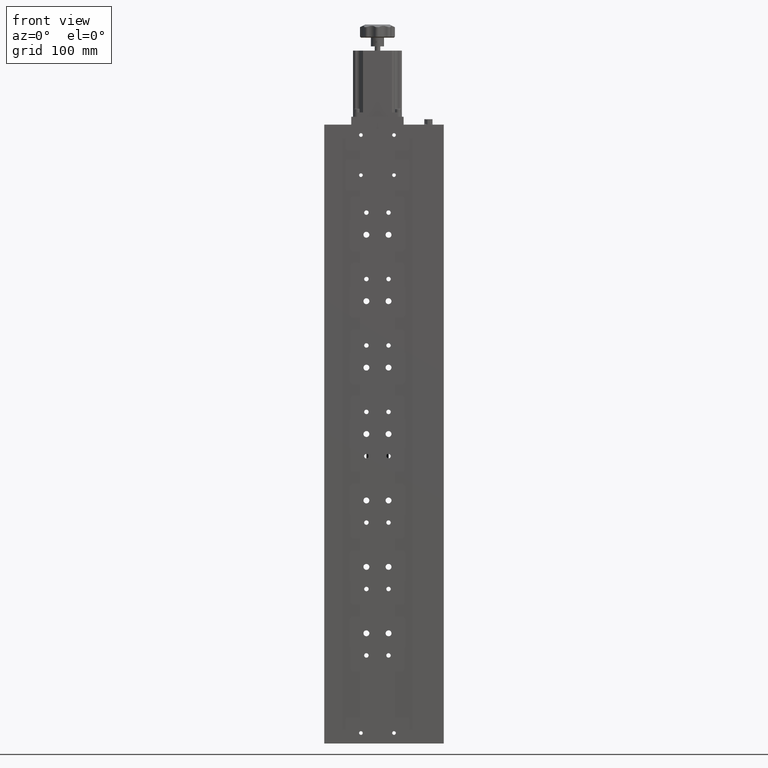
[diagram: clean part render]
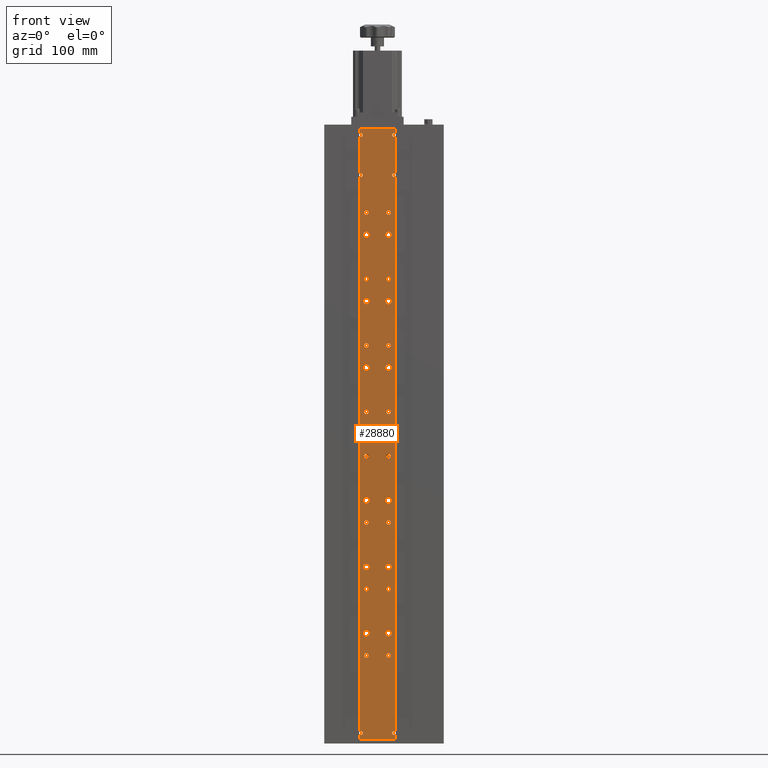
[diagram: same view with one face highlighted and labeled with its STEP entity id]
A machine part, front view. The second image highlights one B-rep face of the part: STEP entity #28880.
In plain terms, the highlighted planar face has unit normal (-0, 1, 0).
Its self-contained STEP definition (entity closure, byte-faithful):
#1 = CARTESIAN_POINT ( 'NONE',  ( -123.5356926832512700, -26.67012639631455100, -424.0815676332766800 ) ) ;
#21 = DIRECTION ( 'NONE',  ( 0.0000000000000000000, 0.0000000000000000000, -1.000000000000000000 ) ) ;
#28 = ORIENTED_EDGE ( 'NONE', *, *, #21445, .T. ) ;
#30 = CIRCLE ( 'NONE', #15059, 3.378199999999997900 ) ;
#131 = CIRCLE ( 'NONE', #5950, 3.378199999999997900 ) ;
#138 = CARTESIAN_POINT ( 'NONE',  ( -117.2356926832512400, -26.67012639631455100, 94.16573236672326200 ) ) ;
#146 = EDGE_CURVE ( 'NONE', #18256, #9367, #18594, .T. ) ;
#156 = DIRECTION ( 'NONE',  ( -0.0000000000000000000, 1.000000000000000000, -0.0000000000000000000 ) ) ;
#202 = EDGE_CURVE ( 'NONE', #36639, #8759, #23064, .T. ) ;
#209 = ORIENTED_EDGE ( 'NONE', *, *, #39248, .T. ) ;
#228 = DIRECTION ( 'NONE',  ( 0.0000000000000000000, 0.0000000000000000000, 1.000000000000000000 ) ) ;
#229 = AXIS2_PLACEMENT_3D ( 'NONE', #31852, #12710, #35071 ) ;
#373 = ORIENTED_EDGE ( 'NONE', *, *, #39318, .T. ) ;
#432 = CARTESIAN_POINT ( 'NONE',  ( -123.5356926832513000, -26.67012639631455100, -401.2342676332767200 ) ) ;
#493 = DIRECTION ( 'NONE',  ( -0.0000000000000000000, 1.000000000000000000, -0.0000000000000000000 ) ) ;
#530 = VERTEX_POINT ( 'NONE', #2464 ) ;
#544 = DIRECTION ( 'NONE',  ( 0.0000000000000000000, 0.0000000000000000000, 1.000000000000000000 ) ) ;
#560 = DIRECTION ( 'NONE',  ( -0.0000000000000000000, 1.000000000000000000, -0.0000000000000000000 ) ) ;
#624 = CARTESIAN_POINT ( 'NONE',  ( -155.2356926832512400, -26.67012639631455100, -591.8342676332765700 ) ) ;
#715 = CARTESIAN_POINT ( 'NONE',  ( -123.5356926832513000, -26.67012639631455100, -96.43426763327670400 ) ) ;
#859 = AXIS2_PLACEMENT_3D ( 'NONE', #1415, #23790, #4641 ) ;
#875 = CARTESIAN_POINT ( 'NONE',  ( -123.5356926832513000, -26.67012639631455100, -172.6342676332767200 ) ) ;
#921 = EDGE_CURVE ( 'NONE', #16871, #24403, #13507, .T. ) ;
#959 = DIRECTION ( 'NONE',  ( -0.0000000000000000000, 1.000000000000000000, -0.0000000000000000000 ) ) ;
#1083 = DIRECTION ( 'NONE',  ( 0.0000000000000000000, 0.0000000000000000000, 1.000000000000000000 ) ) ;
#1093 = EDGE_CURVE ( 'NONE', #19864, #25652, #27434, .T. ) ;
#1145 = DIRECTION ( 'NONE',  ( -1.000000000000000000, -3.029454718961576000E-018, -0.0000000000000000000 ) ) ;
#1196 = DIRECTION ( 'NONE',  ( -0.0000000000000000000, 1.000000000000000000, -0.0000000000000000000 ) ) ;
#1213 = VERTEX_POINT ( 'NONE', #11517 ) ;
#1283 = FACE_BOUND ( 'NONE', #2142, .T. ) ;
#1301 = ORIENTED_EDGE ( 'NONE', *, *, #40830, .T. ) ;
#1326 = VERTEX_POINT ( 'NONE', #35051 ) ;
#1378 = EDGE_LOOP ( 'NONE', ( #5013, #20988 ) ) ;
#1415 = CARTESIAN_POINT ( 'NONE',  ( -148.9356926832512000, -26.67012639631455100, -325.0342676332766700 ) ) ;
#1426 = VERTEX_POINT ( 'NONE', #33966 ) ;
#1503 = ORIENTED_EDGE ( 'NONE', *, *, #3801, .T. ) ;
#1574 = AXIS2_PLACEMENT_3D ( 'NONE', #32871, #13730, #36090 ) ;
#1628 = DIRECTION ( 'NONE',  ( -0.0000000000000000000, 1.000000000000000000, -0.0000000000000000000 ) ) ;
#1659 = EDGE_LOOP ( 'NONE', ( #13155, #10769 ) ) ;
#1667 = CIRCLE ( 'NONE', #6179, 2.099999999999997900 ) ;
#1755 = DIRECTION ( 'NONE',  ( 0.0000000000000000000, 0.0000000000000000000, 1.000000000000000000 ) ) ;
#1774 = DIRECTION ( 'NONE',  ( 0.0000000000000000000, 0.0000000000000000000, -1.000000000000000000 ) ) ;
#1831 = DIRECTION ( 'NONE',  ( 0.0000000000000000000, 0.0000000000000000000, 1.000000000000000000 ) ) ;
#1881 = CARTESIAN_POINT ( 'NONE',  ( -123.5356926832513000, -26.67012639631455100, -401.2342676332767200 ) ) ;
#1937 = VECTOR ( 'NONE', #29968, 1000.000000000000000 ) ;
#2022 = ORIENTED_EDGE ( 'NONE', *, *, #10232, .T. ) ;
#2024 = AXIS2_PLACEMENT_3D ( 'NONE', #24376, #5212, #27570 ) ;
#2047 = CARTESIAN_POINT ( 'NONE',  ( -117.2356926832512400, -26.67012639631455100, -593.9342676332765900 ) ) ;
#2122 = CARTESIAN_POINT ( 'NONE',  ( -117.2356926832512400, -26.67012639631455100, -591.8342676332765700 ) ) ;
#2124 = DIRECTION ( 'NONE',  ( 0.0000000000000000000, 0.0000000000000000000, 1.000000000000000000 ) ) ;
#2142 = EDGE_LOOP ( 'NONE', ( #10615, #2022 ) ) ;
#2188 = EDGE_CURVE ( 'NONE', #23792, #32147, #16926, .T. ) ;
#2258 = DIRECTION ( 'NONE',  ( -0.0000000000000000000, 1.000000000000000000, -0.0000000000000000000 ) ) ;
#2268 = FACE_BOUND ( 'NONE', #6292, .T. ) ;
#2335 = ORIENTED_EDGE ( 'NONE', *, *, #13538, .T. ) ;
#2397 = EDGE_CURVE ( 'NONE', #40386, #31435, #36926, .T. ) ;
#2411 = CARTESIAN_POINT ( 'NONE',  ( -123.5356926832512600, -26.67012639631455100, -352.9869676332767800 ) ) ;
#2423 = CIRCLE ( 'NONE', #23901, 2.552700000000018800 ) ;
#2464 = CARTESIAN_POINT ( 'NONE',  ( -116.2356926832512600, -26.67012639631455100, -593.6808861645386100 ) ) ;
#2630 = DIRECTION ( 'NONE',  ( 0.0000000000000000000, 0.0000000000000000000, 1.000000000000000000 ) ) ;
#2662 = CIRCLE ( 'NONE', #19077, 3.378199999999997900 ) ;
#2763 = EDGE_LOOP ( 'NONE', ( #17345, #31294 ) ) ;
#2859 = CARTESIAN_POINT ( 'NONE',  ( -123.5356926832513000, -26.67012639631455100, -176.0124676332767100 ) ) ;
#2917 = PLANE ( 'NONE',  #229 ) ;
#2949 = EDGE_CURVE ( 'NONE', #26199, #31793, #12316, .T. ) ;
#2981 = EDGE_CURVE ( 'NONE', #15667, #22222, #25292, .T. ) ;
#3087 = CARTESIAN_POINT ( 'NONE',  ( -148.9356926832512300, -26.67012639631455100, -429.1869676332767700 ) ) ;
#3128 = DIRECTION ( 'NONE',  ( -0.0000000000000000000, 1.000000000000000000, -0.0000000000000000000 ) ) ;
#3154 = EDGE_CURVE ( 'NONE', #6883, #25701, #35271, .T. ) ;
#3186 = ORIENTED_EDGE ( 'NONE', *, *, #14483, .T. ) ;
#3275 = FACE_BOUND ( 'NONE', #2763, .T. ) ;
#3371 = DIRECTION ( 'NONE',  ( 0.0000000000000000000, 0.0000000000000000000, 1.000000000000000000 ) ) ;
#3619 = VECTOR ( 'NONE', #21, 1000.000000000000000 ) ;
#3622 = AXIS2_PLACEMENT_3D ( 'NONE', #22277, #3128, #25524 ) ;
#3671 = AXIS2_PLACEMENT_3D ( 'NONE', #13492, #32615, #10255 ) ;
#3737 = CARTESIAN_POINT ( 'NONE',  ( -116.2356926832512400, -26.67012639631455100, -638.9123164879802100 ) ) ;
#3753 = EDGE_CURVE ( 'NONE', #29359, #9807, #32674, .T. ) ;
#3783 = CARTESIAN_POINT ( 'NONE',  ( -123.5356926832513000, -26.67012639631455100, -99.81246763327669700 ) ) ;
#3801 = EDGE_CURVE ( 'NONE', #28670, #10203, #28676, .T. ) ;
#3837 = DIRECTION ( 'NONE',  ( 0.0000000000000000000, 0.0000000000000000000, 1.000000000000000000 ) ) ;
#3880 = DIRECTION ( 'NONE',  ( 0.0000000000000000000, 0.0000000000000000000, 1.000000000000000000 ) ) ;
#3883 = CARTESIAN_POINT ( 'NONE',  ( -117.2356926832512400, -26.67012639631455100, 50.26573236672327700 ) ) ;
#3929 = AXIS2_PLACEMENT_3D ( 'NONE', #34111, #14957, #37346 ) ;
#3948 = DIRECTION ( 'NONE',  ( 0.0000000000000000000, 0.0000000000000000000, 1.000000000000000000 ) ) ;
#4023 = ORIENTED_EDGE ( 'NONE', *, *, #19375, .T. ) ;
#4064 = VERTEX_POINT ( 'NONE', #23410 ) ;
#4085 = DIRECTION ( 'NONE',  ( 0.0000000000000000000, 0.0000000000000000000, 1.000000000000000000 ) ) ;
#4143 = DIRECTION ( 'NONE',  ( -0.0000000000000000000, 1.000000000000000000, -0.0000000000000000000 ) ) ;
#4197 = CARTESIAN_POINT ( 'NONE',  ( -123.5356926832512700, -26.67012639631455100, -505.3869676332766400 ) ) ;
#4215 = CARTESIAN_POINT ( 'NONE',  ( -148.9356926832512000, -26.67012639631455100, -321.6560676332766800 ) ) ;
#4272 = FACE_BOUND ( 'NONE', #35891, .T. ) ;
#4286 = CARTESIAN_POINT ( 'NONE',  ( -117.2356926832512400, -26.67012639631455100, -589.7342676332766600 ) ) ;
#4382 = EDGE_LOOP ( 'NONE', ( #27780, #1301 ) ) ;
#4385 = CARTESIAN_POINT ( 'NONE',  ( -123.5356926832512700, -26.67012639631455100, 7.718432366723295200 ) ) ;
#4405 = EDGE_CURVE ( 'NONE', #37319, #4795, #20133, .T. ) ;
#4418 = CARTESIAN_POINT ( 'NONE',  ( -148.9356926832512000, -26.67012639631455100, -93.05606763327669700 ) ) ;
#4480 = CARTESIAN_POINT ( 'NONE',  ( -123.5356926832512700, -26.67012639631455100, 2.613032366723298900 ) ) ;
#4530 = DIRECTION ( 'NONE',  ( 0.0000000000000000000, 0.0000000000000000000, 1.000000000000000000 ) ) ;
#4565 = EDGE_LOOP ( 'NONE', ( #16166, #39717 ) ) ;
#4641 = DIRECTION ( 'NONE',  ( 0.0000000000000000000, 0.0000000000000000000, 1.000000000000000000 ) ) ;
#4655 = ORIENTED_EDGE ( 'NONE', *, *, #11534, .T. ) ;
#4657 = VERTEX_POINT ( 'NONE', #25257 ) ;
#4666 = EDGE_LOOP ( 'NONE', ( #9312, #4859 ) ) ;
#4689 = CARTESIAN_POINT ( 'NONE',  ( -148.9356926832512300, -26.67012639631455100, -424.0815676332766800 ) ) ;
#4760 = CARTESIAN_POINT ( 'NONE',  ( -148.9356926832512000, -26.67012639631455100, -477.4342676332767000 ) ) ;
#4795 = VERTEX_POINT ( 'NONE', #8308 ) ;
#4859 = ORIENTED_EDGE ( 'NONE', *, *, #39794, .T. ) ;
#4871 = VERTEX_POINT ( 'NONE', #6191 ) ;
#4942 = DIRECTION ( 'NONE',  ( 0.0000000000000000000, 0.0000000000000000000, 1.000000000000000000 ) ) ;
#4981 = AXIS2_PLACEMENT_3D ( 'NONE', #4760, #7982, #23652 ) ;
#4996 = AXIS2_PLACEMENT_3D ( 'NONE', #20115, #959, #23322 ) ;
#5013 = ORIENTED_EDGE ( 'NONE', *, *, #13705, .T. ) ;
#5191 = CARTESIAN_POINT ( 'NONE',  ( -155.2356926832512400, -26.67012639631455100, 48.16573236672327600 ) ) ;
#5212 = DIRECTION ( 'NONE',  ( -0.0000000000000000000, 1.000000000000000000, -0.0000000000000000000 ) ) ;
#5214 = AXIS2_PLACEMENT_3D ( 'NONE', #20789, #1628, #24010 ) ;
#5287 = FACE_BOUND ( 'NONE', #13927, .T. ) ;
#5300 = CARTESIAN_POINT ( 'NONE',  ( -148.9356926832512300, -26.67012639631455100, -71.03426763327667000 ) ) ;
#5392 = EDGE_LOOP ( 'NONE', ( #8237, #33662 ) ) ;
#5402 = AXIS2_PLACEMENT_3D ( 'NONE', #5300, #27656, #8530 ) ;
#5566 = VERTEX_POINT ( 'NONE', #37464 ) ;
#5572 = CIRCLE ( 'NONE', #859, 3.378199999999997900 ) ;
#5697 = DIRECTION ( 'NONE',  ( 0.0000000000000000000, 0.0000000000000000000, 1.000000000000000000 ) ) ;
#5767 = VERTEX_POINT ( 'NONE', #19819 ) ;
#5808 = CARTESIAN_POINT ( 'NONE',  ( -116.2356926832512400, -26.67012639631455100, 101.1657323667232800 ) ) ;
#5889 = EDGE_CURVE ( 'NONE', #5566, #11882, #13711, .T. ) ;
#5950 = AXIS2_PLACEMENT_3D ( 'NONE', #21884, #19605, #19993 ) ;
#5958 = LINE ( 'NONE', #18694, #26000 ) ;
#6125 = CARTESIAN_POINT ( 'NONE',  ( -148.9356926832512000, -26.67012639631455100, -248.8342676332767100 ) ) ;
#6134 = CARTESIAN_POINT ( 'NONE',  ( -148.9356926832512000, -26.67012639631455100, -23.61246763327670800 ) ) ;
#6179 = AXIS2_PLACEMENT_3D ( 'NONE', #40363, #40310, #39916 ) ;
#6191 = CARTESIAN_POINT ( 'NONE',  ( -116.2356926832512600, -26.67012639631455100, 46.31911383546133700 ) ) ;
#6242 = CIRCLE ( 'NONE', #20111, 2.099999999999990800 ) ;
#6292 = EDGE_LOOP ( 'NONE', ( #35696, #373 ) ) ;
#6342 = EDGE_LOOP ( 'NONE', ( #32617, #31351 ) ) ;
#6387 = VERTEX_POINT ( 'NONE', #22413 ) ;
#6437 = VERTEX_POINT ( 'NONE', #6134 ) ;
#6445 = CARTESIAN_POINT ( 'NONE',  ( -123.5356926832512600, -26.67012639631455100, -144.6815676332767000 ) ) ;
#6446 = ORIENTED_EDGE ( 'NONE', *, *, #25039, .T. ) ;
#6487 = CIRCLE ( 'NONE', #40427, 3.378199999999997900 ) ;
#6548 = CARTESIAN_POINT ( 'NONE',  ( -123.5356926832513000, -26.67012639631455100, -325.0342676332766700 ) ) ;
#6606 = CARTESIAN_POINT ( 'NONE',  ( -148.9356926832512000, -26.67012639631455100, -248.8342676332767100 ) ) ;
#6657 = DIRECTION ( 'NONE',  ( -0.0000000000000000000, 1.000000000000000000, -0.0000000000000000000 ) ) ;
#6675 = CARTESIAN_POINT ( 'NONE',  ( -148.9356926832512300, -26.67012639631455100, -144.6815676332767000 ) ) ;
#6815 = CARTESIAN_POINT ( 'NONE',  ( -148.9356926832512000, -26.67012639631455100, -20.23426763327670800 ) ) ;
#6817 = ORIENTED_EDGE ( 'NONE', *, *, #17440, .T. ) ;
#6883 = VERTEX_POINT ( 'NONE', #27716 ) ;
#6909 = DIRECTION ( 'NONE',  ( 0.0000000000000000000, 0.0000000000000000000, 1.000000000000000000 ) ) ;
#6913 = AXIS2_PLACEMENT_3D ( 'NONE', #19333, #156, #22547 ) ;
#6952 = CARTESIAN_POINT ( 'NONE',  ( -148.9356926832512000, -26.67012639631455100, -401.2342676332767200 ) ) ;
#7180 = VERTEX_POINT ( 'NONE', #6445 ) ;
#7266 = VERTEX_POINT ( 'NONE', #4197 ) ;
#7296 = EDGE_CURVE ( 'NONE', #6387, #36686, #23505, .T. ) ;
#7338 = EDGE_CURVE ( 'NONE', #7180, #38055, #22487, .T. ) ;
#7392 = DIRECTION ( 'NONE',  ( -0.0000000000000000000, 1.000000000000000000, -0.0000000000000000000 ) ) ;
#7472 = CARTESIAN_POINT ( 'NONE',  ( -123.5356926832513000, -26.67012639631455100, -20.23426763327670800 ) ) ;
#7711 = EDGE_CURVE ( 'NONE', #28374, #24721, #11914, .T. ) ;
#7766 = DIRECTION ( 'NONE',  ( -0.0000000000000000000, 1.000000000000000000, -0.0000000000000000000 ) ) ;
#7776 = CARTESIAN_POINT ( 'NONE',  ( -123.5356926832512600, -26.67012639631455100, -223.4342676332766800 ) ) ;
#7789 = CIRCLE ( 'NONE', #21796, 2.099999999999997900 ) ;
#7798 = CARTESIAN_POINT ( 'NONE',  ( -123.5356926832512700, -26.67012639631455100, -71.03426763327667000 ) ) ;
#7949 = AXIS2_PLACEMENT_3D ( 'NONE', #16203, #38586, #19436 ) ;
#7982 = DIRECTION ( 'NONE',  ( -0.0000000000000000000, 1.000000000000000000, -0.0000000000000000000 ) ) ;
#8227 = DIRECTION ( 'NONE',  ( -0.0000000000000000000, 1.000000000000000000, -0.0000000000000000000 ) ) ;
#8237 = ORIENTED_EDGE ( 'NONE', *, *, #10503, .T. ) ;
#8308 = CARTESIAN_POINT ( 'NONE',  ( -148.9356926832512300, -26.67012639631455100, -505.3869676332766400 ) ) ;
#8405 = AXIS2_PLACEMENT_3D ( 'NONE', #25834, #6657, #29071 ) ;
#8425 = DIRECTION ( 'NONE',  ( 0.0000000000000000000, 0.0000000000000000000, 1.000000000000000000 ) ) ;
#8527 = CARTESIAN_POINT ( 'NONE',  ( -117.2356926832512400, -26.67012639631455100, 48.16573236672327600 ) ) ;
#8530 = DIRECTION ( 'NONE',  ( 0.0000000000000000000, 0.0000000000000000000, 1.000000000000000000 ) ) ;
#8574 = DIRECTION ( 'NONE',  ( -0.0000000000000000000, 1.000000000000000000, -0.0000000000000000000 ) ) ;
#8593 = AXIS2_PLACEMENT_3D ( 'NONE', #31225, #12113, #34454 ) ;
#8612 = CARTESIAN_POINT ( 'NONE',  ( -123.5356926832513000, -26.67012639631455100, -325.0342676332766700 ) ) ;
#8616 = LINE ( 'NONE', #3737, #15115 ) ;
#8633 = CIRCLE ( 'NONE', #22153, 2.552700000000018800 ) ;
#8639 = EDGE_CURVE ( 'NONE', #35314, #14579, #11964, .T. ) ;
#8655 = DIRECTION ( 'NONE',  ( 0.0000000000000000000, 0.0000000000000000000, 1.000000000000000000 ) ) ;
#8759 = VERTEX_POINT ( 'NONE', #4418 ) ;
#8774 = FACE_OUTER_BOUND ( 'NONE', #22826, .T. ) ;
#8806 = DIRECTION ( 'NONE',  ( -0.0000000000000000000, 1.000000000000000000, -0.0000000000000000000 ) ) ;
#8984 = CARTESIAN_POINT ( 'NONE',  ( -148.9356926832512300, -26.67012639631455100, -149.7869676332766700 ) ) ;
#9051 = ORIENTED_EDGE ( 'NONE', *, *, #29116, .T. ) ;
#9221 = AXIS2_PLACEMENT_3D ( 'NONE', #10553, #32903, #13759 ) ;
#9268 = CIRCLE ( 'NONE', #30030, 2.552700000000018800 ) ;
#9270 = AXIS2_PLACEMENT_3D ( 'NONE', #39725, #20436, #20578 ) ;
#9312 = ORIENTED_EDGE ( 'NONE', *, *, #28444, .T. ) ;
#9353 = DIRECTION ( 'NONE',  ( 0.0000000000000000000, 0.0000000000000000000, 1.000000000000000000 ) ) ;
#9367 = VERTEX_POINT ( 'NONE', #31938 ) ;
#9380 = AXIS2_PLACEMENT_3D ( 'NONE', #17360, #16032, #14723 ) ;
#9525 = CARTESIAN_POINT ( 'NONE',  ( -156.2356926832512400, -26.67012639631455100, -589.9876491020147600 ) ) ;
#9545 = CARTESIAN_POINT ( 'NONE',  ( -156.2356926832512400, -26.67012639631455100, -638.9123164879802100 ) ) ;
#9600 = CARTESIAN_POINT ( 'NONE',  ( -116.2356926832512600, -26.67012639631455100, 92.31911383546132300 ) ) ;
#9761 = DIRECTION ( 'NONE',  ( 0.0000000000000000000, 0.0000000000000000000, 1.000000000000000000 ) ) ;
#9765 = FACE_BOUND ( 'NONE', #32645, .T. ) ;
#9807 = VERTEX_POINT ( 'NONE', #11976 ) ;
#9878 = ORIENTED_EDGE ( 'NONE', *, *, #1093, .T. ) ;
#9911 = DIRECTION ( 'NONE',  ( -0.0000000000000000000, 1.000000000000000000, -0.0000000000000000000 ) ) ;
#9936 = AXIS2_PLACEMENT_3D ( 'NONE', #37668, #18523, #40847 ) ;
#10059 = DIRECTION ( 'NONE',  ( 0.0000000000000000000, 0.0000000000000000000, 1.000000000000000000 ) ) ;
#10066 = CARTESIAN_POINT ( 'NONE',  ( -123.5356926832512700, -26.67012639631455100, -71.03426763327667000 ) ) ;
#10102 = EDGE_CURVE ( 'NONE', #34861, #21391, #9268, .T. ) ;
#10134 = CARTESIAN_POINT ( 'NONE',  ( -116.2356926832512400, -26.67012639631455100, -638.9123164879802100 ) ) ;
#10171 = DIRECTION ( 'NONE',  ( 0.0000000000000000000, 0.0000000000000000000, 1.000000000000000000 ) ) ;
#10172 = EDGE_LOOP ( 'NONE', ( #24265, #4655 ) ) ;
#10197 = VERTEX_POINT ( 'NONE', #32770 ) ;
#10203 = VERTEX_POINT ( 'NONE', #23827 ) ;
#10211 = CARTESIAN_POINT ( 'NONE',  ( -148.9356926832512300, -26.67012639631455100, -147.2342676332766900 ) ) ;
#10227 = CIRCLE ( 'NONE', #31930, 2.552700000000018800 ) ;
#10232 = EDGE_CURVE ( 'NONE', #37501, #37217, #17260, .T. ) ;
#10255 = DIRECTION ( 'NONE',  ( 0.0000000000000000000, 0.0000000000000000000, 1.000000000000000000 ) ) ;
#10280 = EDGE_CURVE ( 'NONE', #22222, #29451, #21723, .T. ) ;
#10335 = AXIS2_PLACEMENT_3D ( 'NONE', #715, #23092, #3948 ) ;
#10402 = CIRCLE ( 'NONE', #30028, 3.378199999999997900 ) ;
#10422 = VERTEX_POINT ( 'NONE', #30203 ) ;
#10503 = EDGE_CURVE ( 'NONE', #14579, #35314, #2662, .T. ) ;
#10553 = CARTESIAN_POINT ( 'NONE',  ( -148.9356926832512300, -26.67012639631455100, -502.8342676332766800 ) ) ;
#10615 = ORIENTED_EDGE ( 'NONE', *, *, #26233, .T. ) ;
#10684 = VERTEX_POINT ( 'NONE', #29939 ) ;
#10695 = DIRECTION ( 'NONE',  ( 0.0000000000000000000, 0.0000000000000000000, 1.000000000000000000 ) ) ;
#10745 = EDGE_CURVE ( 'NONE', #40791, #33183, #37181, .T. ) ;
#10748 = CIRCLE ( 'NONE', #9380, 3.378199999999997900 ) ;
#10763 = ORIENTED_EDGE ( 'NONE', *, *, #32100, .T. ) ;
#10769 = ORIENTED_EDGE ( 'NONE', *, *, #31707, .T. ) ;
#10806 = FACE_BOUND ( 'NONE', #35686, .T. ) ;
#10813 = CIRCLE ( 'NONE', #18765, 2.099999999999990800 ) ;
#10907 = ORIENTED_EDGE ( 'NONE', *, *, #13648, .T. ) ;
#11027 = DIRECTION ( 'NONE',  ( 0.0000000000000000000, 0.0000000000000000000, 1.000000000000000000 ) ) ;
#11116 = DIRECTION ( 'NONE',  ( 0.0000000000000000000, 0.0000000000000000000, 1.000000000000000000 ) ) ;
#11124 = AXIS2_PLACEMENT_3D ( 'NONE', #14656, #37060, #17921 ) ;
#11177 = DIRECTION ( 'NONE',  ( -0.0000000000000000000, 1.000000000000000000, -0.0000000000000000000 ) ) ;
#11274 = CARTESIAN_POINT ( 'NONE',  ( -156.2356926832512400, -26.67012639631455100, 96.01235089798521500 ) ) ;
#11293 = AXIS2_PLACEMENT_3D ( 'NONE', #38870, #19716, #544 ) ;
#11397 = EDGE_LOOP ( 'NONE', ( #34783, #37482 ) ) ;
#11403 = CARTESIAN_POINT ( 'NONE',  ( -117.2356926832512400, -26.67012639631455100, 94.16573236672326200 ) ) ;
#11473 = AXIS2_PLACEMENT_3D ( 'NONE', #8527, #8574, #8655 ) ;
#11517 = CARTESIAN_POINT ( 'NONE',  ( -148.9356926832512300, -26.67012639631455100, -347.8815676332766900 ) ) ;
#11533 = VERTEX_POINT ( 'NONE', #4689 ) ;
#11534 = EDGE_CURVE ( 'NONE', #38055, #7180, #25015, .T. ) ;
#11560 = DIRECTION ( 'NONE',  ( -0.0000000000000000000, 1.000000000000000000, -0.0000000000000000000 ) ) ;
#11610 = CIRCLE ( 'NONE', #3622, 2.552700000000018800 ) ;
#11710 = DIRECTION ( 'NONE',  ( 0.0000000000000000000, 0.0000000000000000000, 1.000000000000000000 ) ) ;
#11803 = FACE_BOUND ( 'NONE', #32324, .T. ) ;
#11827 = DIRECTION ( 'NONE',  ( 0.0000000000000000000, 0.0000000000000000000, 1.000000000000000000 ) ) ;
#11882 = VERTEX_POINT ( 'NONE', #16535 ) ;
#11901 = VERTEX_POINT ( 'NONE', #6675 ) ;
#11914 = CIRCLE ( 'NONE', #13319, 2.552700000000018800 ) ;
#11917 = AXIS2_PLACEMENT_3D ( 'NONE', #16071, #15360, #14678 ) ;
#11964 = CIRCLE ( 'NONE', #17123, 3.378199999999997900 ) ;
#11976 = CARTESIAN_POINT ( 'NONE',  ( -156.2356926832512700, -26.67012639631455100, -598.8342676332768000 ) ) ;
#11992 = EDGE_CURVE ( 'NONE', #10197, #19864, #37010, .T. ) ;
#12067 = CIRCLE ( 'NONE', #36969, 3.378199999999997900 ) ;
#12091 = DIRECTION ( 'NONE',  ( -0.0000000000000000000, 1.000000000000000000, -0.0000000000000000000 ) ) ;
#12113 = DIRECTION ( 'NONE',  ( -0.0000000000000000000, 1.000000000000000000, -0.0000000000000000000 ) ) ;
#12290 = CARTESIAN_POINT ( 'NONE',  ( -148.9356926832512000, -26.67012639631455100, -20.23426763327670800 ) ) ;
#12293 = CARTESIAN_POINT ( 'NONE',  ( -148.9356926832512300, -26.67012639631455100, -73.58696763327665700 ) ) ;
#12315 = DIRECTION ( 'NONE',  ( -0.0000000000000000000, 1.000000000000000000, -0.0000000000000000000 ) ) ;
#12316 = CIRCLE ( 'NONE', #20592, 3.378199999999997900 ) ;
#12317 = ORIENTED_EDGE ( 'NONE', *, *, #29288, .T. ) ;
#12324 = CARTESIAN_POINT ( 'NONE',  ( -123.5356926832512700, -26.67012639631455100, -73.58696763327665700 ) ) ;
#12358 = ORIENTED_EDGE ( 'NONE', *, *, #3753, .F. ) ;
#12456 = CIRCLE ( 'NONE', #28576, 3.378199999999997900 ) ;
#12627 = CARTESIAN_POINT ( 'NONE',  ( -123.5356926832513000, -26.67012639631455100, -245.4560676332767200 ) ) ;
#12710 = DIRECTION ( 'NONE',  ( -3.029454718961576000E-018, 1.000000000000000000, 0.0000000000000000000 ) ) ;
#12719 = CARTESIAN_POINT ( 'NONE',  ( -148.9356926832512000, -26.67012639631455100, -328.4124676332767200 ) ) ;
#12798 = FACE_BOUND ( 'NONE', #23286, .T. ) ;
#13027 = AXIS2_PLACEMENT_3D ( 'NONE', #31460, #12315, #34664 ) ;
#13147 = CIRCLE ( 'NONE', #1574, 3.378199999999997900 ) ;
#13155 = ORIENTED_EDGE ( 'NONE', *, *, #30066, .T. ) ;
#13301 = CIRCLE ( 'NONE', #7949, 2.552700000000018800 ) ;
#13309 = CARTESIAN_POINT ( 'NONE',  ( -116.2356926832512400, -26.67012639631455100, 50.01235089798522200 ) ) ;
#13319 = AXIS2_PLACEMENT_3D ( 'NONE', #36395, #36248, #36799 ) ;
#13324 = EDGE_CURVE ( 'NONE', #10203, #28670, #10748, .T. ) ;
#13408 = CARTESIAN_POINT ( 'NONE',  ( -148.9356926832512000, -26.67012639631455100, -16.85606763327671200 ) ) ;
#13414 = DIRECTION ( 'NONE',  ( 0.0000000000000000000, 0.0000000000000000000, 1.000000000000000000 ) ) ;
#13441 = DIRECTION ( 'NONE',  ( 0.0000000000000000000, 0.0000000000000000000, 1.000000000000000000 ) ) ;
#13492 = CARTESIAN_POINT ( 'NONE',  ( -123.5356926832512700, -26.67012639631455100, 5.165732366723297300 ) ) ;
#13507 = LINE ( 'NONE', #23063, #39023 ) ;
#13538 = EDGE_CURVE ( 'NONE', #29922, #30649, #27693, .T. ) ;
#13617 = ORIENTED_EDGE ( 'NONE', *, *, #39316, .T. ) ;
#13648 = EDGE_CURVE ( 'NONE', #4657, #36808, #1667, .T. ) ;
#13705 = EDGE_CURVE ( 'NONE', #21391, #34861, #10227, .T. ) ;
#13711 = CIRCLE ( 'NONE', #34374, 2.099999999999990800 ) ;
#13730 = DIRECTION ( 'NONE',  ( -0.0000000000000000000, 1.000000000000000000, -0.0000000000000000000 ) ) ;
#13736 = VERTEX_POINT ( 'NONE', #40573 ) ;
#13759 = DIRECTION ( 'NONE',  ( 0.0000000000000000000, 0.0000000000000000000, 1.000000000000000000 ) ) ;
#13824 = FACE_BOUND ( 'NONE', #32400, .T. ) ;
#13927 = EDGE_LOOP ( 'NONE', ( #4023, #41312 ) ) ;
#13987 = VECTOR ( 'NONE', #6909, 1000.000000000000000 ) ;
#14007 = EDGE_CURVE ( 'NONE', #37505, #38906, #131, .T. ) ;
#14062 = CARTESIAN_POINT ( 'NONE',  ( -123.5356926832513000, -26.67012639631455100, -477.4342676332767000 ) ) ;
#14227 = AXIS2_PLACEMENT_3D ( 'NONE', #7776, #30162, #11027 ) ;
#14261 = EDGE_LOOP ( 'NONE', ( #25496, #35237 ) ) ;
#14321 = EDGE_CURVE ( 'NONE', #31435, #40791, #30133, .T. ) ;
#14437 = CIRCLE ( 'NONE', #29862, 2.552699999999990900 ) ;
#14483 = EDGE_CURVE ( 'NONE', #25701, #6883, #17111, .T. ) ;
#14492 = CIRCLE ( 'NONE', #22671, 2.099999999999990800 ) ;
#14544 = CARTESIAN_POINT ( 'NONE',  ( -148.9356926832512300, -26.67012639631455100, -220.8815676332766900 ) ) ;
#14557 = CIRCLE ( 'NONE', #27448, 2.552700000000018800 ) ;
#14579 = VERTEX_POINT ( 'NONE', #33486 ) ;
#14656 = CARTESIAN_POINT ( 'NONE',  ( -155.2356926832512700, -26.67012639631455100, 94.16573236672326200 ) ) ;
#14678 = DIRECTION ( 'NONE',  ( 0.0000000000000000000, 0.0000000000000000000, 1.000000000000000000 ) ) ;
#14723 = DIRECTION ( 'NONE',  ( 0.0000000000000000000, 0.0000000000000000000, 1.000000000000000000 ) ) ;
#14790 = FACE_BOUND ( 'NONE', #23750, .T. ) ;
#14855 = CARTESIAN_POINT ( 'NONE',  ( -123.5356926832512600, -26.67012639631455100, -274.2342676332767200 ) ) ;
#14936 = VERTEX_POINT ( 'NONE', #12719 ) ;
#14957 = DIRECTION ( 'NONE',  ( -0.0000000000000000000, 1.000000000000000000, -0.0000000000000000000 ) ) ;
#15059 = AXIS2_PLACEMENT_3D ( 'NONE', #40947, #21780, #2630 ) ;
#15115 = VECTOR ( 'NONE', #13414, 1000.000000000000000 ) ;
#15168 = EDGE_CURVE ( 'NONE', #24403, #10422, #30165, .T. ) ;
#15216 = ORIENTED_EDGE ( 'NONE', *, *, #21948, .T. ) ;
#15245 = DIRECTION ( 'NONE',  ( -0.0000000000000000000, 1.000000000000000000, -0.0000000000000000000 ) ) ;
#15312 = EDGE_CURVE ( 'NONE', #17248, #6437, #36141, .T. ) ;
#15360 = DIRECTION ( 'NONE',  ( -0.0000000000000000000, 1.000000000000000000, -0.0000000000000000000 ) ) ;
#15375 = ORIENTED_EDGE ( 'NONE', *, *, #34336, .T. ) ;
#15444 = AXIS2_PLACEMENT_3D ( 'NONE', #30300, #11177, #33541 ) ;
#15477 = DIRECTION ( 'NONE',  ( 0.0000000000000000000, 0.0000000000000000000, 1.000000000000000000 ) ) ;
#15639 = EDGE_CURVE ( 'NONE', #5767, #38752, #28600, .T. ) ;
#15667 = VERTEX_POINT ( 'NONE', #2047 ) ;
#16032 = DIRECTION ( 'NONE',  ( -0.0000000000000000000, 1.000000000000000000, -0.0000000000000000000 ) ) ;
#16050 = AXIS2_PLACEMENT_3D ( 'NONE', #27959, #8806, #31175 ) ;
#16067 = CIRCLE ( 'NONE', #20983, 3.378199999999997900 ) ;
#16071 = CARTESIAN_POINT ( 'NONE',  ( -155.2356926832512700, -26.67012639631455100, 94.16573236672326200 ) ) ;
#16163 = ORIENTED_EDGE ( 'NONE', *, *, #17335, .T. ) ;
#16166 = ORIENTED_EDGE ( 'NONE', *, *, #30721, .T. ) ;
#16198 = DIRECTION ( 'NONE',  ( -1.000000000000000000, -3.029454718961576000E-018, -0.0000000000000000000 ) ) ;
#16203 = CARTESIAN_POINT ( 'NONE',  ( -148.9356926832512300, -26.67012639631455100, -274.2342676332767200 ) ) ;
#16239 = EDGE_LOOP ( 'NONE', ( #28411, #209 ) ) ;
#16264 = DIRECTION ( 'NONE',  ( 0.0000000000000000000, 0.0000000000000000000, 1.000000000000000000 ) ) ;
#16270 = EDGE_CURVE ( 'NONE', #24721, #28374, #28488, .T. ) ;
#16535 = CARTESIAN_POINT ( 'NONE',  ( -155.2356926832512400, -26.67012639631455100, -593.9342676332765900 ) ) ;
#16537 = CIRCLE ( 'NONE', #15444, 3.378199999999997900 ) ;
#16568 = EDGE_CURVE ( 'NONE', #33183, #29299, #14492, .T. ) ;
#16871 = VERTEX_POINT ( 'NONE', #27238 ) ;
#16926 = CIRCLE ( 'NONE', #3671, 2.552699999999998000 ) ;
#17111 = CIRCLE ( 'NONE', #40792, 2.552699999999990900 ) ;
#17123 = AXIS2_PLACEMENT_3D ( 'NONE', #1881, #28292, #28591 ) ;
#17211 = EDGE_CURVE ( 'NONE', #38752, #5767, #38885, .T. ) ;
#17224 = DIRECTION ( 'NONE',  ( -0.0000000000000000000, 1.000000000000000000, -0.0000000000000000000 ) ) ;
#17248 = VERTEX_POINT ( 'NONE', #13408 ) ;
#17260 = CIRCLE ( 'NONE', #20664, 2.552700000000018800 ) ;
#17262 = ORIENTED_EDGE ( 'NONE', *, *, #31800, .T. ) ;
#17294 = FACE_BOUND ( 'NONE', #4666, .T. ) ;
#17312 = DIRECTION ( 'NONE',  ( -0.0000000000000000000, 1.000000000000000000, -0.0000000000000000000 ) ) ;
#17335 = EDGE_CURVE ( 'NONE', #25652, #4657, #41344, .T. ) ;
#17345 = ORIENTED_EDGE ( 'NONE', *, *, #18622, .T. ) ;
#17360 = CARTESIAN_POINT ( 'NONE',  ( -123.5356926832513000, -26.67012639631455100, -477.4342676332767000 ) ) ;
#17440 = EDGE_CURVE ( 'NONE', #24635, #36999, #32323, .T. ) ;
#17509 = CIRCLE ( 'NONE', #21683, 2.552700000000018800 ) ;
#17566 = DIRECTION ( 'NONE',  ( -0.0000000000000000000, 1.000000000000000000, -0.0000000000000000000 ) ) ;
#17569 = CARTESIAN_POINT ( 'NONE',  ( -123.5356926832513000, -26.67012639631455100, -23.61246763327670800 ) ) ;
#17672 = AXIS2_PLACEMENT_3D ( 'NONE', #7798, #7392, #28614 ) ;
#17803 = CIRCLE ( 'NONE', #8405, 2.552699999999990900 ) ;
#17830 = CARTESIAN_POINT ( 'NONE',  ( -123.5356926832512700, -26.67012639631455100, -426.6342676332766900 ) ) ;
#17921 = DIRECTION ( 'NONE',  ( 0.0000000000000000000, 0.0000000000000000000, 1.000000000000000000 ) ) ;
#17944 = ORIENTED_EDGE ( 'NONE', *, *, #921, .T. ) ;
#17973 = DIRECTION ( 'NONE',  ( -0.0000000000000000000, 1.000000000000000000, -0.0000000000000000000 ) ) ;
#17999 = ORIENTED_EDGE ( 'NONE', *, *, #24648, .T. ) ;
#18105 = DIRECTION ( 'NONE',  ( -0.0000000000000000000, 1.000000000000000000, -0.0000000000000000000 ) ) ;
#18133 = EDGE_CURVE ( 'NONE', #1326, #23622, #24074, .T. ) ;
#18158 = CARTESIAN_POINT ( 'NONE',  ( -148.9356926832512000, -26.67012639631455100, -96.43426763327670400 ) ) ;
#18198 = ORIENTED_EDGE ( 'NONE', *, *, #3154, .T. ) ;
#18256 = VERTEX_POINT ( 'NONE', #12293 ) ;
#18301 = FACE_BOUND ( 'NONE', #37183, .T. ) ;
#18339 = CARTESIAN_POINT ( 'NONE',  ( -148.9356926832512300, -26.67012639631455100, -71.03426763327667000 ) ) ;
#18523 = DIRECTION ( 'NONE',  ( -0.0000000000000000000, 1.000000000000000000, -0.0000000000000000000 ) ) ;
#18594 = CIRCLE ( 'NONE', #24192, 2.552699999999990900 ) ;
#18607 = ORIENTED_EDGE ( 'NONE', *, *, #7711, .T. ) ;
#18622 = EDGE_CURVE ( 'NONE', #11533, #37644, #17509, .T. ) ;
#18636 = CARTESIAN_POINT ( 'NONE',  ( -117.2356926832512400, -26.67012639631455100, 96.26573236672325600 ) ) ;
#18694 = CARTESIAN_POINT ( 'NONE',  ( -116.2356926832512400, -26.67012639631455100, -638.9123164879802100 ) ) ;
#18728 = CARTESIAN_POINT ( 'NONE',  ( -148.9356926832512300, -26.67012639631455100, -350.4342676332767000 ) ) ;
#18733 = DIRECTION ( 'NONE',  ( 0.0000000000000000000, 0.0000000000000000000, 1.000000000000000000 ) ) ;
#18765 = AXIS2_PLACEMENT_3D ( 'NONE', #23302, #4143, #26514 ) ;
#18853 = ORIENTED_EDGE ( 'NONE', *, *, #11992, .T. ) ;
#18979 = DIRECTION ( 'NONE',  ( -0.0000000000000000000, 1.000000000000000000, -0.0000000000000000000 ) ) ;
#19077 = AXIS2_PLACEMENT_3D ( 'NONE', #432, #493, #3880 ) ;
#19113 = DIRECTION ( 'NONE',  ( 0.0000000000000000000, 0.0000000000000000000, 1.000000000000000000 ) ) ;
#19209 = EDGE_LOOP ( 'NONE', ( #6817, #22902 ) ) ;
#19296 = FACE_BOUND ( 'NONE', #31261, .T. ) ;
#19312 = EDGE_CURVE ( 'NONE', #36686, #6387, #10402, .T. ) ;
#19333 = CARTESIAN_POINT ( 'NONE',  ( -148.9356926832512300, -26.67012639631455100, -223.4342676332766800 ) ) ;
#19375 = EDGE_CURVE ( 'NONE', #21430, #13736, #22379, .T. ) ;
#19436 = DIRECTION ( 'NONE',  ( 0.0000000000000000000, 0.0000000000000000000, 1.000000000000000000 ) ) ;
#19528 = ORIENTED_EDGE ( 'NONE', *, *, #28630, .T. ) ;
#19605 = DIRECTION ( 'NONE',  ( -0.0000000000000000000, 1.000000000000000000, -0.0000000000000000000 ) ) ;
#19716 = DIRECTION ( 'NONE',  ( -0.0000000000000000000, 1.000000000000000000, -0.0000000000000000000 ) ) ;
#19732 = CARTESIAN_POINT ( 'NONE',  ( -123.5356926832512700, -26.67012639631455100, -502.8342676332766800 ) ) ;
#19763 = CARTESIAN_POINT ( 'NONE',  ( -123.5356926832512700, -26.67012639631455100, -429.1869676332767700 ) ) ;
#19786 = CARTESIAN_POINT ( 'NONE',  ( -123.5356926832512600, -26.67012639631455100, -347.8815676332766900 ) ) ;
#19819 = CARTESIAN_POINT ( 'NONE',  ( -148.9356926832512000, -26.67012639631455100, -404.6124676332767600 ) ) ;
#19827 = VERTEX_POINT ( 'NONE', #14544 ) ;
#19861 = EDGE_CURVE ( 'NONE', #9367, #18256, #27773, .T. ) ;
#19864 = VERTEX_POINT ( 'NONE', #33973 ) ;
#19869 = AXIS2_PLACEMENT_3D ( 'NONE', #11403, #12091, #11710 ) ;
#19931 = AXIS2_PLACEMENT_3D ( 'NONE', #34935, #32847, #39589 ) ;
#19949 = CARTESIAN_POINT ( 'NONE',  ( -148.9356926832512000, -26.67012639631455100, -397.8560676332767200 ) ) ;
#19993 = DIRECTION ( 'NONE',  ( 0.0000000000000000000, 0.0000000000000000000, 1.000000000000000000 ) ) ;
#20111 = AXIS2_PLACEMENT_3D ( 'NONE', #30684, #11560, #33913 ) ;
#20115 = CARTESIAN_POINT ( 'NONE',  ( -123.5356926832513000, -26.67012639631455100, -248.8342676332767100 ) ) ;
#20133 = CIRCLE ( 'NONE', #21452, 2.552699999999963300 ) ;
#20237 = DIRECTION ( 'NONE',  ( -0.0000000000000000000, 1.000000000000000000, -0.0000000000000000000 ) ) ;
#20305 = FACE_BOUND ( 'NONE', #6342, .T. ) ;
#20344 = CARTESIAN_POINT ( 'NONE',  ( -148.9356926832512300, -26.67012639631455100, -500.2815676332766700 ) ) ;
#20360 = CARTESIAN_POINT ( 'NONE',  ( -148.9356926832512300, -26.67012639631455100, -350.4342676332767000 ) ) ;
#20436 = DIRECTION ( 'NONE',  ( -0.0000000000000000000, 1.000000000000000000, -0.0000000000000000000 ) ) ;
#20472 = CIRCLE ( 'NONE', #35281, 2.099999999999990800 ) ;
#20520 = ORIENTED_EDGE ( 'NONE', *, *, #14007, .T. ) ;
#20578 = DIRECTION ( 'NONE',  ( 0.0000000000000000000, 0.0000000000000000000, 1.000000000000000000 ) ) ;
#20592 = AXIS2_PLACEMENT_3D ( 'NONE', #6606, #18105, #18733 ) ;
#20664 = AXIS2_PLACEMENT_3D ( 'NONE', #21021, #17973, #11116 ) ;
#20715 = DIRECTION ( 'NONE',  ( 0.0000000000000000000, 0.0000000000000000000, 1.000000000000000000 ) ) ;
#20789 = CARTESIAN_POINT ( 'NONE',  ( -148.9356926832512000, -26.67012639631455100, -401.2342676332767200 ) ) ;
#20798 = VERTEX_POINT ( 'NONE', #37449 ) ;
#20932 = DIRECTION ( 'NONE',  ( -0.0000000000000000000, 1.000000000000000000, -0.0000000000000000000 ) ) ;
#20943 = CARTESIAN_POINT ( 'NONE',  ( -156.2356926832512400, -26.67012639631455100, -638.9123164879802100 ) ) ;
#20961 = DIRECTION ( 'NONE',  ( 0.0000000000000000000, 0.0000000000000000000, -1.000000000000000000 ) ) ;
#20983 = AXIS2_PLACEMENT_3D ( 'NONE', #6548, #28970, #9761 ) ;
#20988 = ORIENTED_EDGE ( 'NONE', *, *, #10102, .T. ) ;
#20997 = DIRECTION ( 'NONE',  ( -0.0000000000000000000, 1.000000000000000000, -0.0000000000000000000 ) ) ;
#21020 = DIRECTION ( 'NONE',  ( 0.0000000000000000000, 0.0000000000000000000, 1.000000000000000000 ) ) ;
#21021 = CARTESIAN_POINT ( 'NONE',  ( -123.5356926832512600, -26.67012639631455100, -350.4342676332767000 ) ) ;
#21150 = EDGE_CURVE ( 'NONE', #32147, #23792, #31166, .T. ) ;
#21279 = DIRECTION ( 'NONE',  ( -0.0000000000000000000, 1.000000000000000000, -0.0000000000000000000 ) ) ;
#21288 = FACE_BOUND ( 'NONE', #35376, .T. ) ;
#21391 = VERTEX_POINT ( 'NONE', #21978 ) ;
#21430 = VERTEX_POINT ( 'NONE', #12627 ) ;
#21434 = VERTEX_POINT ( 'NONE', #31911 ) ;
#21445 = EDGE_CURVE ( 'NONE', #34157, #32450, #22635, .T. ) ;
#21452 = AXIS2_PLACEMENT_3D ( 'NONE', #33447, #33719, #31867 ) ;
#21574 = AXIS2_PLACEMENT_3D ( 'NONE', #8612, #30973, #11827 ) ;
#21596 = CARTESIAN_POINT ( 'NONE',  ( -148.9356926832512000, -26.67012639631455100, -245.4560676332767200 ) ) ;
#21598 = CARTESIAN_POINT ( 'NONE',  ( -156.2356926832512400, -26.67012639631455100, 46.31911383546133700 ) ) ;
#21603 = EDGE_LOOP ( 'NONE', ( #24323, #15216 ) ) ;
#21683 = AXIS2_PLACEMENT_3D ( 'NONE', #26937, #7766, #30153 ) ;
#21711 = CARTESIAN_POINT ( 'NONE',  ( -116.2356926832512400, -26.67012639631454700, -598.8342676332768000 ) ) ;
#21712 = EDGE_CURVE ( 'NONE', #14936, #30512, #5572, .T. ) ;
#21723 = CIRCLE ( 'NONE', #35655, 2.099999999999990800 ) ;
#21764 = ORIENTED_EDGE ( 'NONE', *, *, #28841, .T. ) ;
#21780 = DIRECTION ( 'NONE',  ( -0.0000000000000000000, 1.000000000000000000, -0.0000000000000000000 ) ) ;
#21796 = AXIS2_PLACEMENT_3D ( 'NONE', #5191, #27552, #8425 ) ;
#21884 = CARTESIAN_POINT ( 'NONE',  ( -123.5356926832513000, -26.67012639631455100, -20.23426763327670800 ) ) ;
#21914 = DIRECTION ( 'NONE',  ( 0.0000000000000000000, 0.0000000000000000000, 1.000000000000000000 ) ) ;
#21918 = CIRCLE ( 'NONE', #14227, 2.552699999999990900 ) ;
#21946 = ORIENTED_EDGE ( 'NONE', *, *, #41376, .T. ) ;
#21948 = EDGE_CURVE ( 'NONE', #27664, #1426, #30, .T. ) ;
#21978 = CARTESIAN_POINT ( 'NONE',  ( -123.5356926832512600, -26.67012639631455100, -271.6815676332767000 ) ) ;
#22153 = AXIS2_PLACEMENT_3D ( 'NONE', #20360, #1196, #23579 ) ;
#22222 = VERTEX_POINT ( 'NONE', #4286 ) ;
#22262 = CARTESIAN_POINT ( 'NONE',  ( -123.5356926832512600, -26.67012639631455100, -220.8815676332766900 ) ) ;
#22277 = CARTESIAN_POINT ( 'NONE',  ( -148.9356926832512300, -26.67012639631455100, -426.6342676332766900 ) ) ;
#22287 = FACE_BOUND ( 'NONE', #16239, .T. ) ;
#22312 = ORIENTED_EDGE ( 'NONE', *, *, #29343, .T. ) ;
#22379 = CIRCLE ( 'NONE', #9936, 3.378199999999997900 ) ;
#22382 = CIRCLE ( 'NONE', #31801, 3.378199999999997900 ) ;
#22413 = CARTESIAN_POINT ( 'NONE',  ( -148.9356926832512000, -26.67012639631455100, -480.8124676332767000 ) ) ;
#22473 = LINE ( 'NONE', #10134, #13987 ) ;
#22487 = CIRCLE ( 'NONE', #9270, 2.552699999999990900 ) ;
#22530 = DIRECTION ( 'NONE',  ( -0.0000000000000000000, 1.000000000000000000, -0.0000000000000000000 ) ) ;
#22547 = DIRECTION ( 'NONE',  ( 0.0000000000000000000, 0.0000000000000000000, 1.000000000000000000 ) ) ;
#22635 = LINE ( 'NONE', #9545, #3619 ) ;
#22671 = AXIS2_PLACEMENT_3D ( 'NONE', #138, #22530, #3371 ) ;
#22784 = ORIENTED_EDGE ( 'NONE', *, *, #4405, .T. ) ;
#22826 = EDGE_LOOP ( 'NONE', ( #28, #12317, #28777, #28075, #23803, #12358, #15375, #29027, #32870, #30011, #21946, #22312, #32880, #25460, #33408, #36583, #6446, #2335, #17262, #13617, #17944, #35929, #9051, #18853, #9878, #16163, #10907, #35880 ) ) ;
#22902 = ORIENTED_EDGE ( 'NONE', *, *, #33927, .T. ) ;
#22944 = DIRECTION ( 'NONE',  ( 0.0000000000000000000, 0.0000000000000000000, 1.000000000000000000 ) ) ;
#23008 = DIRECTION ( 'NONE',  ( -0.0000000000000000000, 1.000000000000000000, -0.0000000000000000000 ) ) ;
#23058 = CARTESIAN_POINT ( 'NONE',  ( -148.9356926832512000, -26.67012639631455100, -99.81246763327669700 ) ) ;
#23063 = CARTESIAN_POINT ( 'NONE',  ( -156.2356926832512400, -26.67012639631455100, -638.9123164879802100 ) ) ;
#23064 = CIRCLE ( 'NONE', #39208, 3.378199999999997900 ) ;
#23092 = DIRECTION ( 'NONE',  ( -0.0000000000000000000, 1.000000000000000000, -0.0000000000000000000 ) ) ;
#23248 = DIRECTION ( 'NONE',  ( -0.0000000000000000000, 1.000000000000000000, -0.0000000000000000000 ) ) ;
#23255 = CARTESIAN_POINT ( 'NONE',  ( -156.2356926832512400, -26.67012639631455100, -638.9123164879802100 ) ) ;
#23286 = EDGE_LOOP ( 'NONE', ( #21764, #37213 ) ) ;
#23302 = CARTESIAN_POINT ( 'NONE',  ( -155.2356926832512700, -26.67012639631455100, 94.16573236672326200 ) ) ;
#23310 = CIRCLE ( 'NONE', #27485, 3.378199999999997900 ) ;
#23322 = DIRECTION ( 'NONE',  ( 0.0000000000000000000, 0.0000000000000000000, 1.000000000000000000 ) ) ;
#23356 = EDGE_CURVE ( 'NONE', #38681, #40956, #40763, .T. ) ;
#23410 = CARTESIAN_POINT ( 'NONE',  ( -148.9356926832512300, -26.67012639631455100, -225.9869676332766600 ) ) ;
#23423 = DIRECTION ( 'NONE',  ( -0.0000000000000000000, 1.000000000000000000, -0.0000000000000000000 ) ) ;
#23505 = CIRCLE ( 'NONE', #4981, 3.378199999999997900 ) ;
#23579 = DIRECTION ( 'NONE',  ( 0.0000000000000000000, 0.0000000000000000000, 1.000000000000000000 ) ) ;
#23622 = VERTEX_POINT ( 'NONE', #3783 ) ;
#23652 = DIRECTION ( 'NONE',  ( 0.0000000000000000000, 0.0000000000000000000, 1.000000000000000000 ) ) ;
#23750 = EDGE_LOOP ( 'NONE', ( #26522, #26588 ) ) ;
#23752 = CARTESIAN_POINT ( 'NONE',  ( -155.2356926832512400, -26.67012639631455100, 46.06573236672328200 ) ) ;
#23785 = AXIS2_PLACEMENT_3D ( 'NONE', #6952, #29342, #10171 ) ;
#23790 = DIRECTION ( 'NONE',  ( -0.0000000000000000000, 1.000000000000000000, -0.0000000000000000000 ) ) ;
#23792 = VERTEX_POINT ( 'NONE', #4480 ) ;
#23803 = ORIENTED_EDGE ( 'NONE', *, *, #39894, .T. ) ;
#23827 = CARTESIAN_POINT ( 'NONE',  ( -123.5356926832513000, -26.67012639631455100, -474.0560676332766500 ) ) ;
#23848 = ORIENTED_EDGE ( 'NONE', *, *, #17211, .T. ) ;
#23901 = AXIS2_PLACEMENT_3D ( 'NONE', #38136, #18979, #41308 ) ;
#24010 = DIRECTION ( 'NONE',  ( 0.0000000000000000000, 0.0000000000000000000, 1.000000000000000000 ) ) ;
#24074 = CIRCLE ( 'NONE', #34787, 3.378199999999997900 ) ;
#24126 = VERTEX_POINT ( 'NONE', #40902 ) ;
#24177 = VECTOR ( 'NONE', #16198, 1000.000000000000000 ) ;
#24192 = AXIS2_PLACEMENT_3D ( 'NONE', #18339, #30179, #27341 ) ;
#24237 = CARTESIAN_POINT ( 'NONE',  ( -117.2356926832512400, -26.67012639631455100, -591.8342676332765700 ) ) ;
#24251 = LINE ( 'NONE', #20943, #32746 ) ;
#24265 = ORIENTED_EDGE ( 'NONE', *, *, #7338, .T. ) ;
#24302 = EDGE_CURVE ( 'NONE', #26435, #1213, #8633, .T. ) ;
#24323 = ORIENTED_EDGE ( 'NONE', *, *, #24777, .T. ) ;
#24364 = CIRCLE ( 'NONE', #36063, 2.552699999999998000 ) ;
#24376 = CARTESIAN_POINT ( 'NONE',  ( -148.9356926832512300, -26.67012639631455100, 5.165732366723297300 ) ) ;
#24403 = VERTEX_POINT ( 'NONE', #11274 ) ;
#24608 = CARTESIAN_POINT ( 'NONE',  ( -200.6106926832512400, -26.67012639631455100, -598.8342676332768000 ) ) ;
#24635 = VERTEX_POINT ( 'NONE', #22262 ) ;
#24648 = EDGE_CURVE ( 'NONE', #19827, #4064, #26090, .T. ) ;
#24721 = VERTEX_POINT ( 'NONE', #19763 ) ;
#24777 = EDGE_CURVE ( 'NONE', #1426, #27664, #12067, .T. ) ;
#24780 = CARTESIAN_POINT ( 'NONE',  ( -123.5356926832513000, -26.67012639631455100, -16.85606763327671200 ) ) ;
#24942 = EDGE_CURVE ( 'NONE', #29957, #21434, #6487, .T. ) ;
#24965 = CIRCLE ( 'NONE', #9221, 2.552699999999963300 ) ;
#25015 = CIRCLE ( 'NONE', #19931, 2.552699999999990900 ) ;
#25039 = EDGE_CURVE ( 'NONE', #29299, #29922, #26015, .T. ) ;
#25257 = CARTESIAN_POINT ( 'NONE',  ( -155.2356926832512400, -26.67012639631455100, 50.26573236672327700 ) ) ;
#25292 = CIRCLE ( 'NONE', #35579, 2.099999999999990800 ) ;
#25460 = ORIENTED_EDGE ( 'NONE', *, *, #14321, .T. ) ;
#25496 = ORIENTED_EDGE ( 'NONE', *, *, #19312, .T. ) ;
#25524 = DIRECTION ( 'NONE',  ( 0.0000000000000000000, 0.0000000000000000000, 1.000000000000000000 ) ) ;
#25652 = VERTEX_POINT ( 'NONE', #37633 ) ;
#25701 = VERTEX_POINT ( 'NONE', #12324 ) ;
#25755 = CARTESIAN_POINT ( 'NONE',  ( -123.5356926832512600, -26.67012639631455100, -276.7869676332767300 ) ) ;
#25787 = FACE_BOUND ( 'NONE', #29900, .T. ) ;
#25834 = CARTESIAN_POINT ( 'NONE',  ( -148.9356926832512300, -26.67012639631455100, -223.4342676332766800 ) ) ;
#25836 = EDGE_CURVE ( 'NONE', #530, #15667, #34043, .T. ) ;
#26000 = VECTOR ( 'NONE', #41016, 1000.000000000000000 ) ;
#26015 = CIRCLE ( 'NONE', #16050, 2.099999999999990800 ) ;
#26090 = CIRCLE ( 'NONE', #6913, 2.552699999999990900 ) ;
#26199 = VERTEX_POINT ( 'NONE', #37726 ) ;
#26228 = VERTEX_POINT ( 'NONE', #5808 ) ;
#26233 = EDGE_CURVE ( 'NONE', #37217, #37501, #2423, .T. ) ;
#26435 = VERTEX_POINT ( 'NONE', #38746 ) ;
#26514 = DIRECTION ( 'NONE',  ( 0.0000000000000000000, 0.0000000000000000000, 1.000000000000000000 ) ) ;
#26522 = ORIENTED_EDGE ( 'NONE', *, *, #36806, .T. ) ;
#26588 = ORIENTED_EDGE ( 'NONE', *, *, #202, .T. ) ;
#26623 = DIRECTION ( 'NONE',  ( -0.0000000000000000000, 1.000000000000000000, -0.0000000000000000000 ) ) ;
#26790 = FACE_BOUND ( 'NONE', #19209, .T. ) ;
#26937 = CARTESIAN_POINT ( 'NONE',  ( -148.9356926832512300, -26.67012639631455100, -426.6342676332766900 ) ) ;
#26938 = EDGE_CURVE ( 'NONE', #4064, #19827, #17803, .T. ) ;
#27238 = CARTESIAN_POINT ( 'NONE',  ( -156.2356926832512700, -26.67012639631455100, 101.1657323667232800 ) ) ;
#27341 = DIRECTION ( 'NONE',  ( 0.0000000000000000000, 0.0000000000000000000, 1.000000000000000000 ) ) ;
#27374 = CARTESIAN_POINT ( 'NONE',  ( -123.5356926832513000, -26.67012639631455100, -96.43426763327670400 ) ) ;
#27434 = LINE ( 'NONE', #23255, #1937 ) ;
#27448 = AXIS2_PLACEMENT_3D ( 'NONE', #18728, #41054, #21914 ) ;
#27461 = CARTESIAN_POINT ( 'NONE',  ( -117.2356926832512400, -26.67012639631455100, 92.06573236672326700 ) ) ;
#27485 = AXIS2_PLACEMENT_3D ( 'NONE', #6125, #28526, #9353 ) ;
#27552 = DIRECTION ( 'NONE',  ( -0.0000000000000000000, 1.000000000000000000, -0.0000000000000000000 ) ) ;
#27570 = DIRECTION ( 'NONE',  ( 0.0000000000000000000, 0.0000000000000000000, 1.000000000000000000 ) ) ;
#27656 = DIRECTION ( 'NONE',  ( -0.0000000000000000000, 1.000000000000000000, -0.0000000000000000000 ) ) ;
#27664 = VERTEX_POINT ( 'NONE', #2859 ) ;
#27693 = CIRCLE ( 'NONE', #19869, 2.099999999999990800 ) ;
#27714 = EDGE_CURVE ( 'NONE', #37644, #11533, #11610, .T. ) ;
#27716 = CARTESIAN_POINT ( 'NONE',  ( -123.5356926832512700, -26.67012639631455100, -68.48156763327666900 ) ) ;
#27773 = CIRCLE ( 'NONE', #5402, 2.552699999999990900 ) ;
#27780 = ORIENTED_EDGE ( 'NONE', *, *, #24942, .T. ) ;
#27781 = FACE_BOUND ( 'NONE', #4565, .T. ) ;
#27959 = CARTESIAN_POINT ( 'NONE',  ( -117.2356926832512400, -26.67012639631455100, 94.16573236672326200 ) ) ;
#28075 = ORIENTED_EDGE ( 'NONE', *, *, #37189, .T. ) ;
#28176 = CARTESIAN_POINT ( 'NONE',  ( -123.5356926832512600, -26.67012639631455100, -225.9869676332766600 ) ) ;
#28275 = ORIENTED_EDGE ( 'NONE', *, *, #21712, .T. ) ;
#28292 = DIRECTION ( 'NONE',  ( -0.0000000000000000000, 1.000000000000000000, -0.0000000000000000000 ) ) ;
#28374 = VERTEX_POINT ( 'NONE', #1 ) ;
#28411 = ORIENTED_EDGE ( 'NONE', *, *, #18133, .T. ) ;
#28444 = EDGE_CURVE ( 'NONE', #31610, #7266, #38882, .T. ) ;
#28488 = CIRCLE ( 'NONE', #41405, 2.552700000000018800 ) ;
#28526 = DIRECTION ( 'NONE',  ( -0.0000000000000000000, 1.000000000000000000, -0.0000000000000000000 ) ) ;
#28576 = AXIS2_PLACEMENT_3D ( 'NONE', #7472, #29836, #10695 ) ;
#28591 = DIRECTION ( 'NONE',  ( 0.0000000000000000000, 0.0000000000000000000, 1.000000000000000000 ) ) ;
#28600 = CIRCLE ( 'NONE', #5214, 3.378199999999997900 ) ;
#28614 = DIRECTION ( 'NONE',  ( 0.0000000000000000000, 0.0000000000000000000, 1.000000000000000000 ) ) ;
#28630 = EDGE_CURVE ( 'NONE', #24126, #37594, #39836, .T. ) ;
#28652 = VECTOR ( 'NONE', #5697, 1000.000000000000000 ) ;
#28670 = VERTEX_POINT ( 'NONE', #37481 ) ;
#28676 = CIRCLE ( 'NONE', #39105, 3.378199999999997900 ) ;
#28777 = ORIENTED_EDGE ( 'NONE', *, *, #5889, .T. ) ;
#28815 = FACE_BOUND ( 'NONE', #14261, .T. ) ;
#28837 = ORIENTED_EDGE ( 'NONE', *, *, #13324, .T. ) ;
#28841 = EDGE_CURVE ( 'NONE', #31793, #26199, #23310, .T. ) ;
#28880 = ADVANCED_FACE ( 'NONE', ( #39327, #14790, #30794, #32815, #22287, #13824, #5287, #38325, #29812, #21288, #12798, #4272, #37320, #28815, #20305, #11803, #3275, #36322, #27781, #19296, #10806, #2268, #35294, #26790, #18301, #9765, #1283, #34284, #25787, #17294, #8774 ), #2917, .F. ) ;
#28970 = DIRECTION ( 'NONE',  ( -0.0000000000000000000, 1.000000000000000000, -0.0000000000000000000 ) ) ;
#29027 = ORIENTED_EDGE ( 'NONE', *, *, #25836, .T. ) ;
#29071 = DIRECTION ( 'NONE',  ( 0.0000000000000000000, 0.0000000000000000000, 1.000000000000000000 ) ) ;
#29116 = EDGE_CURVE ( 'NONE', #10422, #10197, #10813, .T. ) ;
#29233 = DIRECTION ( 'NONE',  ( -0.0000000000000000000, 1.000000000000000000, -0.0000000000000000000 ) ) ;
#29272 = CARTESIAN_POINT ( 'NONE',  ( -116.2356926832512400, -26.67012639631455100, -638.9123164879802100 ) ) ;
#29288 = EDGE_CURVE ( 'NONE', #32450, #5566, #6242, .T. ) ;
#29299 = VERTEX_POINT ( 'NONE', #27461 ) ;
#29342 = DIRECTION ( 'NONE',  ( -0.0000000000000000000, 1.000000000000000000, -0.0000000000000000000 ) ) ;
#29343 = EDGE_CURVE ( 'NONE', #4871, #40386, #30254, .T. ) ;
#29359 = VERTEX_POINT ( 'NONE', #21711 ) ;
#29451 = VERTEX_POINT ( 'NONE', #41278 ) ;
#29633 = CARTESIAN_POINT ( 'NONE',  ( -148.9356926832512000, -26.67012639631455100, -474.0560676332766500 ) ) ;
#29804 = CARTESIAN_POINT ( 'NONE',  ( -200.6106926832512400, -26.67012639631455100, 101.1657323667232800 ) ) ;
#29812 = FACE_BOUND ( 'NONE', #5392, .T. ) ;
#29836 = DIRECTION ( 'NONE',  ( -0.0000000000000000000, 1.000000000000000000, -0.0000000000000000000 ) ) ;
#29862 = AXIS2_PLACEMENT_3D ( 'NONE', #34407, #15245, #37637 ) ;
#29881 = ORIENTED_EDGE ( 'NONE', *, *, #19861, .T. ) ;
#29900 = EDGE_LOOP ( 'NONE', ( #18607, #41389 ) ) ;
#29922 = VERTEX_POINT ( 'NONE', #18636 ) ;
#29937 = ORIENTED_EDGE ( 'NONE', *, *, #30450, .T. ) ;
#29939 = CARTESIAN_POINT ( 'NONE',  ( -123.5356926832513000, -26.67012639631455100, -328.4124676332767200 ) ) ;
#29957 = VERTEX_POINT ( 'NONE', #38053 ) ;
#29968 = DIRECTION ( 'NONE',  ( 0.0000000000000000000, 0.0000000000000000000, -1.000000000000000000 ) ) ;
#30011 = ORIENTED_EDGE ( 'NONE', *, *, #10280, .T. ) ;
#30028 = AXIS2_PLACEMENT_3D ( 'NONE', #40459, #21279, #2124 ) ;
#30030 = AXIS2_PLACEMENT_3D ( 'NONE', #14855, #23423, #4942 ) ;
#30066 = EDGE_CURVE ( 'NONE', #20798, #10684, #16067, .T. ) ;
#30133 = CIRCLE ( 'NONE', #37328, 2.099999999999997900 ) ;
#30153 = DIRECTION ( 'NONE',  ( 0.0000000000000000000, 0.0000000000000000000, 1.000000000000000000 ) ) ;
#30162 = DIRECTION ( 'NONE',  ( -0.0000000000000000000, 1.000000000000000000, -0.0000000000000000000 ) ) ;
#30165 = CIRCLE ( 'NONE', #11124, 2.099999999999990800 ) ;
#30179 = DIRECTION ( 'NONE',  ( -0.0000000000000000000, 1.000000000000000000, -0.0000000000000000000 ) ) ;
#30203 = CARTESIAN_POINT ( 'NONE',  ( -155.2356926832512700, -26.67012639631455100, 96.26573236672325600 ) ) ;
#30254 = CIRCLE ( 'NONE', #8593, 2.099999999999997900 ) ;
#30300 = CARTESIAN_POINT ( 'NONE',  ( -148.9356926832512000, -26.67012639631455100, -96.43426763327670400 ) ) ;
#30450 = EDGE_CURVE ( 'NONE', #4795, #37319, #24965, .T. ) ;
#30512 = VERTEX_POINT ( 'NONE', #4215 ) ;
#30599 = DIRECTION ( 'NONE',  ( 0.0000000000000000000, 0.0000000000000000000, 1.000000000000000000 ) ) ;
#30613 = ORIENTED_EDGE ( 'NONE', *, *, #39624, .T. ) ;
#30625 = DIRECTION ( 'NONE',  ( 0.0000000000000000000, 0.0000000000000000000, 1.000000000000000000 ) ) ;
#30649 = VERTEX_POINT ( 'NONE', #34002 ) ;
#30684 = CARTESIAN_POINT ( 'NONE',  ( -155.2356926832512400, -26.67012639631455100, -591.8342676332765700 ) ) ;
#30721 = EDGE_CURVE ( 'NONE', #11901, #32350, #14437, .T. ) ;
#30794 = FACE_BOUND ( 'NONE', #11397, .T. ) ;
#30973 = DIRECTION ( 'NONE',  ( -0.0000000000000000000, 1.000000000000000000, -0.0000000000000000000 ) ) ;
#31166 = CIRCLE ( 'NONE', #40486, 2.552699999999998000 ) ;
#31175 = DIRECTION ( 'NONE',  ( 0.0000000000000000000, 0.0000000000000000000, 1.000000000000000000 ) ) ;
#31214 = EDGE_CURVE ( 'NONE', #1213, #26435, #14557, .T. ) ;
#31225 = CARTESIAN_POINT ( 'NONE',  ( -117.2356926832512400, -26.67012639631455100, 48.16573236672327600 ) ) ;
#31261 = EDGE_LOOP ( 'NONE', ( #17999, #34132 ) ) ;
#31294 = ORIENTED_EDGE ( 'NONE', *, *, #27714, .T. ) ;
#31351 = ORIENTED_EDGE ( 'NONE', *, *, #24302, .T. ) ;
#31435 = VERTEX_POINT ( 'NONE', #3883 ) ;
#31460 = CARTESIAN_POINT ( 'NONE',  ( -148.9356926832512000, -26.67012639631455100, -325.0342676332766700 ) ) ;
#31475 = CARTESIAN_POINT ( 'NONE',  ( -123.5356926832512600, -26.67012639631455100, -149.7869676332766700 ) ) ;
#31610 = VERTEX_POINT ( 'NONE', #40080 ) ;
#31707 = EDGE_CURVE ( 'NONE', #10684, #20798, #35496, .T. ) ;
#31793 = VERTEX_POINT ( 'NONE', #21596 ) ;
#31800 = EDGE_CURVE ( 'NONE', #30649, #26228, #5958, .T. ) ;
#31801 = AXIS2_PLACEMENT_3D ( 'NONE', #6815, #29233, #10059 ) ;
#31852 = CARTESIAN_POINT ( 'NONE',  ( -200.6106926832512400, -26.67012639631455100, -598.8342676332768000 ) ) ;
#31862 = VECTOR ( 'NONE', #1145, 1000.000000000000000 ) ;
#31867 = DIRECTION ( 'NONE',  ( 0.0000000000000000000, 0.0000000000000000000, 1.000000000000000000 ) ) ;
#31911 = CARTESIAN_POINT ( 'NONE',  ( -148.9356926832512000, -26.67012639631455100, -176.0124676332767100 ) ) ;
#31930 = AXIS2_PLACEMENT_3D ( 'NONE', #39368, #37007, #19113 ) ;
#31938 = CARTESIAN_POINT ( 'NONE',  ( -148.9356926832512300, -26.67012639631455100, -68.48156763327666900 ) ) ;
#32100 = EDGE_CURVE ( 'NONE', #38906, #37505, #12456, .T. ) ;
#32147 = VERTEX_POINT ( 'NONE', #4385 ) ;
#32323 = CIRCLE ( 'NONE', #33704, 2.552699999999990900 ) ;
#32324 = EDGE_LOOP ( 'NONE', ( #19528, #30613 ) ) ;
#32350 = VERTEX_POINT ( 'NONE', #8984 ) ;
#32400 = EDGE_LOOP ( 'NONE', ( #20520, #10763 ) ) ;
#32450 = VERTEX_POINT ( 'NONE', #9525 ) ;
#32562 = DIRECTION ( 'NONE',  ( -0.0000000000000000000, 1.000000000000000000, -0.0000000000000000000 ) ) ;
#32584 = CIRCLE ( 'NONE', #40274, 2.552699999999990900 ) ;
#32615 = DIRECTION ( 'NONE',  ( -0.0000000000000000000, 1.000000000000000000, -0.0000000000000000000 ) ) ;
#32617 = ORIENTED_EDGE ( 'NONE', *, *, #31214, .T. ) ;
#32645 = EDGE_LOOP ( 'NONE', ( #38388, #34024 ) ) ;
#32674 = LINE ( 'NONE', #24608, #24177 ) ;
#32746 = VECTOR ( 'NONE', #1774, 1000.000000000000000 ) ;
#32770 = CARTESIAN_POINT ( 'NONE',  ( -155.2356926832512700, -26.67012639631455100, 92.06573236672326700 ) ) ;
#32801 = EDGE_CURVE ( 'NONE', #6437, #17248, #22382, .T. ) ;
#32815 = FACE_BOUND ( 'NONE', #21603, .T. ) ;
#32834 = CIRCLE ( 'NONE', #13027, 3.378199999999997900 ) ;
#32847 = DIRECTION ( 'NONE',  ( -0.0000000000000000000, 1.000000000000000000, -0.0000000000000000000 ) ) ;
#32862 = AXIS2_PLACEMENT_3D ( 'NONE', #36485, #17312, #39679 ) ;
#32870 = ORIENTED_EDGE ( 'NONE', *, *, #2981, .T. ) ;
#32871 = CARTESIAN_POINT ( 'NONE',  ( -148.9356926832512000, -26.67012639631455100, -172.6342676332767200 ) ) ;
#32880 = ORIENTED_EDGE ( 'NONE', *, *, #2397, .T. ) ;
#32903 = DIRECTION ( 'NONE',  ( -0.0000000000000000000, 1.000000000000000000, -0.0000000000000000000 ) ) ;
#33183 = VERTEX_POINT ( 'NONE', #9600 ) ;
#33302 = ORIENTED_EDGE ( 'NONE', *, *, #39504, .T. ) ;
#33387 = AXIS2_PLACEMENT_3D ( 'NONE', #19732, #560, #22944 ) ;
#33408 = ORIENTED_EDGE ( 'NONE', *, *, #10745, .T. ) ;
#33447 = CARTESIAN_POINT ( 'NONE',  ( -148.9356926832512300, -26.67012639631455100, -502.8342676332766800 ) ) ;
#33486 = CARTESIAN_POINT ( 'NONE',  ( -123.5356926832513000, -26.67012639631455100, -397.8560676332767200 ) ) ;
#33541 = DIRECTION ( 'NONE',  ( 0.0000000000000000000, 0.0000000000000000000, 1.000000000000000000 ) ) ;
#33662 = ORIENTED_EDGE ( 'NONE', *, *, #8639, .T. ) ;
#33704 = AXIS2_PLACEMENT_3D ( 'NONE', #40072, #20932, #1755 ) ;
#33719 = DIRECTION ( 'NONE',  ( -0.0000000000000000000, 1.000000000000000000, -0.0000000000000000000 ) ) ;
#33913 = DIRECTION ( 'NONE',  ( 0.0000000000000000000, 0.0000000000000000000, 1.000000000000000000 ) ) ;
#33927 = EDGE_CURVE ( 'NONE', #36999, #24635, #21918, .T. ) ;
#33966 = CARTESIAN_POINT ( 'NONE',  ( -123.5356926832513000, -26.67012639631455100, -169.2560676332767300 ) ) ;
#33973 = CARTESIAN_POINT ( 'NONE',  ( -156.2356926832512400, -26.67012639631455100, 92.31911383546132300 ) ) ;
#34002 = CARTESIAN_POINT ( 'NONE',  ( -116.2356926832512400, -26.67012639631455100, 96.01235089798521500 ) ) ;
#34024 = ORIENTED_EDGE ( 'NONE', *, *, #2188, .T. ) ;
#34043 = CIRCLE ( 'NONE', #11293, 2.099999999999990800 ) ;
#34111 = CARTESIAN_POINT ( 'NONE',  ( -148.9356926832512300, -26.67012639631455100, -274.2342676332767200 ) ) ;
#34132 = ORIENTED_EDGE ( 'NONE', *, *, #26938, .T. ) ;
#34157 = VERTEX_POINT ( 'NONE', #21598 ) ;
#34284 = FACE_BOUND ( 'NONE', #1378, .T. ) ;
#34335 = DIRECTION ( 'NONE',  ( 0.0000000000000000000, 0.0000000000000000000, 1.000000000000000000 ) ) ;
#34336 = EDGE_CURVE ( 'NONE', #29359, #530, #22473, .T. ) ;
#34374 = AXIS2_PLACEMENT_3D ( 'NONE', #39404, #41488, #228 ) ;
#34407 = CARTESIAN_POINT ( 'NONE',  ( -148.9356926832512300, -26.67012639631455100, -147.2342676332766900 ) ) ;
#34454 = DIRECTION ( 'NONE',  ( 0.0000000000000000000, 0.0000000000000000000, 1.000000000000000000 ) ) ;
#34641 = DIRECTION ( 'NONE',  ( -0.0000000000000000000, 1.000000000000000000, -0.0000000000000000000 ) ) ;
#34664 = DIRECTION ( 'NONE',  ( 0.0000000000000000000, 0.0000000000000000000, 1.000000000000000000 ) ) ;
#34704 = CARTESIAN_POINT ( 'NONE',  ( -148.9356926832512300, -26.67012639631455100, -276.7869676332767300 ) ) ;
#34783 = ORIENTED_EDGE ( 'NONE', *, *, #15312, .T. ) ;
#34787 = AXIS2_PLACEMENT_3D ( 'NONE', #27374, #8227, #30599 ) ;
#34861 = VERTEX_POINT ( 'NONE', #25755 ) ;
#34935 = CARTESIAN_POINT ( 'NONE',  ( -123.5356926832512600, -26.67012639631455100, -147.2342676332766900 ) ) ;
#35051 = CARTESIAN_POINT ( 'NONE',  ( -123.5356926832513000, -26.67012639631455100, -93.05606763327669700 ) ) ;
#35071 = DIRECTION ( 'NONE',  ( -1.000000000000000000, -3.029454718961576000E-018, 0.0000000000000000000 ) ) ;
#35153 = CARTESIAN_POINT ( 'NONE',  ( -156.2356926832512400, -26.67012639631455100, -593.6808861645386100 ) ) ;
#35237 = ORIENTED_EDGE ( 'NONE', *, *, #7296, .T. ) ;
#35271 = CIRCLE ( 'NONE', #17672, 2.552699999999990900 ) ;
#35281 = AXIS2_PLACEMENT_3D ( 'NONE', #624, #23008, #3837 ) ;
#35294 = FACE_BOUND ( 'NONE', #10172, .T. ) ;
#35314 = VERTEX_POINT ( 'NONE', #37761 ) ;
#35376 = EDGE_LOOP ( 'NONE', ( #28837, #1503 ) ) ;
#35496 = CIRCLE ( 'NONE', #21574, 3.378199999999997900 ) ;
#35579 = AXIS2_PLACEMENT_3D ( 'NONE', #2122, #2258, #16264 ) ;
#35601 = CARTESIAN_POINT ( 'NONE',  ( -148.9356926832512300, -26.67012639631455100, 7.718432366723295200 ) ) ;
#35655 = AXIS2_PLACEMENT_3D ( 'NONE', #24237, #26623, #4530 ) ;
#35686 = EDGE_LOOP ( 'NONE', ( #29881, #39807 ) ) ;
#35696 = ORIENTED_EDGE ( 'NONE', *, *, #23356, .T. ) ;
#35746 = EDGE_CURVE ( 'NONE', #36808, #34157, #7789, .T. ) ;
#35880 = ORIENTED_EDGE ( 'NONE', *, *, #35746, .T. ) ;
#35891 = EDGE_LOOP ( 'NONE', ( #33302, #28275 ) ) ;
#35929 = ORIENTED_EDGE ( 'NONE', *, *, #15168, .T. ) ;
#36063 = AXIS2_PLACEMENT_3D ( 'NONE', #36391, #17224, #39588 ) ;
#36090 = DIRECTION ( 'NONE',  ( 0.0000000000000000000, 0.0000000000000000000, 1.000000000000000000 ) ) ;
#36141 = CIRCLE ( 'NONE', #41088, 3.378199999999997900 ) ;
#36248 = DIRECTION ( 'NONE',  ( -0.0000000000000000000, 1.000000000000000000, -0.0000000000000000000 ) ) ;
#36296 = CIRCLE ( 'NONE', #4996, 3.378199999999997900 ) ;
#36322 = FACE_BOUND ( 'NONE', #37291, .T. ) ;
#36391 = CARTESIAN_POINT ( 'NONE',  ( -148.9356926832512300, -26.67012639631455100, 5.165732366723297300 ) ) ;
#36395 = CARTESIAN_POINT ( 'NONE',  ( -123.5356926832512700, -26.67012639631455100, -426.6342676332766900 ) ) ;
#36482 = DIRECTION ( 'NONE',  ( -0.0000000000000000000, 1.000000000000000000, -0.0000000000000000000 ) ) ;
#36485 = CARTESIAN_POINT ( 'NONE',  ( -123.5356926832512700, -26.67012639631455100, -502.8342676332766800 ) ) ;
#36522 = CARTESIAN_POINT ( 'NONE',  ( -148.9356926832512300, -26.67012639631455100, 2.613032366723298900 ) ) ;
#36574 = CARTESIAN_POINT ( 'NONE',  ( -117.2356926832512400, -26.67012639631455100, 46.06573236672328200 ) ) ;
#36583 = ORIENTED_EDGE ( 'NONE', *, *, #16568, .T. ) ;
#36628 = DIRECTION ( 'NONE',  ( -0.0000000000000000000, 1.000000000000000000, -0.0000000000000000000 ) ) ;
#36639 = VERTEX_POINT ( 'NONE', #23058 ) ;
#36686 = VERTEX_POINT ( 'NONE', #29633 ) ;
#36710 = CARTESIAN_POINT ( 'NONE',  ( -123.5356926832512700, -26.67012639631455100, 5.165732366723297300 ) ) ;
#36776 = CIRCLE ( 'NONE', #32862, 2.552699999999963300 ) ;
#36799 = DIRECTION ( 'NONE',  ( 0.0000000000000000000, 0.0000000000000000000, 1.000000000000000000 ) ) ;
#36806 = EDGE_CURVE ( 'NONE', #8759, #36639, #16537, .T. ) ;
#36808 = VERTEX_POINT ( 'NONE', #23752 ) ;
#36926 = CIRCLE ( 'NONE', #11473, 2.099999999999997900 ) ;
#36969 = AXIS2_PLACEMENT_3D ( 'NONE', #875, #23248, #4085 ) ;
#36999 = VERTEX_POINT ( 'NONE', #28176 ) ;
#37007 = DIRECTION ( 'NONE',  ( -0.0000000000000000000, 1.000000000000000000, -0.0000000000000000000 ) ) ;
#37010 = CIRCLE ( 'NONE', #11917, 2.099999999999990800 ) ;
#37060 = DIRECTION ( 'NONE',  ( -0.0000000000000000000, 1.000000000000000000, -0.0000000000000000000 ) ) ;
#37181 = LINE ( 'NONE', #29272, #28652 ) ;
#37183 = EDGE_LOOP ( 'NONE', ( #18198, #3186 ) ) ;
#37189 = EDGE_CURVE ( 'NONE', #11882, #40161, #20472, .T. ) ;
#37213 = ORIENTED_EDGE ( 'NONE', *, *, #2949, .T. ) ;
#37217 = VERTEX_POINT ( 'NONE', #19786 ) ;
#37291 = EDGE_LOOP ( 'NONE', ( #22784, #29937 ) ) ;
#37319 = VERTEX_POINT ( 'NONE', #20344 ) ;
#37320 = FACE_BOUND ( 'NONE', #40225, .T. ) ;
#37328 = AXIS2_PLACEMENT_3D ( 'NONE', #39015, #40816, #40950 ) ;
#37346 = DIRECTION ( 'NONE',  ( 0.0000000000000000000, 0.0000000000000000000, 1.000000000000000000 ) ) ;
#37449 = CARTESIAN_POINT ( 'NONE',  ( -123.5356926832513000, -26.67012639631455100, -321.6560676332766800 ) ) ;
#37464 = CARTESIAN_POINT ( 'NONE',  ( -155.2356926832512400, -26.67012639631455100, -589.7342676332766600 ) ) ;
#37481 = CARTESIAN_POINT ( 'NONE',  ( -123.5356926832513000, -26.67012639631455100, -480.8124676332767000 ) ) ;
#37482 = ORIENTED_EDGE ( 'NONE', *, *, #32801, .T. ) ;
#37501 = VERTEX_POINT ( 'NONE', #2411 ) ;
#37505 = VERTEX_POINT ( 'NONE', #24780 ) ;
#37594 = VERTEX_POINT ( 'NONE', #34704 ) ;
#37633 = CARTESIAN_POINT ( 'NONE',  ( -156.2356926832512400, -26.67012639631455100, 50.01235089798522200 ) ) ;
#37637 = DIRECTION ( 'NONE',  ( 0.0000000000000000000, 0.0000000000000000000, 1.000000000000000000 ) ) ;
#37644 = VERTEX_POINT ( 'NONE', #3087 ) ;
#37668 = CARTESIAN_POINT ( 'NONE',  ( -123.5356926832513000, -26.67012639631455100, -248.8342676332767100 ) ) ;
#37726 = CARTESIAN_POINT ( 'NONE',  ( -148.9356926832512000, -26.67012639631455100, -252.2124676332767000 ) ) ;
#37761 = CARTESIAN_POINT ( 'NONE',  ( -123.5356926832513000, -26.67012639631455100, -404.6124676332767600 ) ) ;
#38053 = CARTESIAN_POINT ( 'NONE',  ( -148.9356926832512000, -26.67012639631455100, -169.2560676332767300 ) ) ;
#38055 = VERTEX_POINT ( 'NONE', #31475 ) ;
#38136 = CARTESIAN_POINT ( 'NONE',  ( -123.5356926832512600, -26.67012639631455100, -350.4342676332767000 ) ) ;
#38222 = EDGE_CURVE ( 'NONE', #32350, #11901, #32584, .T. ) ;
#38325 = FACE_BOUND ( 'NONE', #1659, .T. ) ;
#38388 = ORIENTED_EDGE ( 'NONE', *, *, #21150, .T. ) ;
#38586 = DIRECTION ( 'NONE',  ( -0.0000000000000000000, 1.000000000000000000, -0.0000000000000000000 ) ) ;
#38681 = VERTEX_POINT ( 'NONE', #35601 ) ;
#38746 = CARTESIAN_POINT ( 'NONE',  ( -148.9356926832512300, -26.67012639631455100, -352.9869676332767800 ) ) ;
#38752 = VERTEX_POINT ( 'NONE', #19949 ) ;
#38870 = CARTESIAN_POINT ( 'NONE',  ( -117.2356926832512400, -26.67012639631455100, -591.8342676332765700 ) ) ;
#38882 = CIRCLE ( 'NONE', #33387, 2.552699999999963300 ) ;
#38885 = CIRCLE ( 'NONE', #23785, 3.378199999999997900 ) ;
#38906 = VERTEX_POINT ( 'NONE', #17569 ) ;
#39015 = CARTESIAN_POINT ( 'NONE',  ( -117.2356926832512400, -26.67012639631455100, 48.16573236672327600 ) ) ;
#39023 = VECTOR ( 'NONE', #20961, 1000.000000000000000 ) ;
#39105 = AXIS2_PLACEMENT_3D ( 'NONE', #14062, #36482, #20715 ) ;
#39208 = AXIS2_PLACEMENT_3D ( 'NONE', #18158, #36628, #34335 ) ;
#39248 = EDGE_CURVE ( 'NONE', #23622, #1326, #39897, .T. ) ;
#39316 = EDGE_CURVE ( 'NONE', #26228, #16871, #40371, .T. ) ;
#39318 = EDGE_CURVE ( 'NONE', #40956, #38681, #24364, .T. ) ;
#39327 = FACE_BOUND ( 'NONE', #4382, .T. ) ;
#39368 = CARTESIAN_POINT ( 'NONE',  ( -123.5356926832512600, -26.67012639631455100, -274.2342676332767200 ) ) ;
#39390 = CARTESIAN_POINT ( 'NONE',  ( -155.2356926832512400, -26.67012639631455100, 48.16573236672327600 ) ) ;
#39404 = CARTESIAN_POINT ( 'NONE',  ( -155.2356926832512400, -26.67012639631455100, -591.8342676332765700 ) ) ;
#39504 = EDGE_CURVE ( 'NONE', #30512, #14936, #32834, .T. ) ;
#39588 = DIRECTION ( 'NONE',  ( 0.0000000000000000000, 0.0000000000000000000, 1.000000000000000000 ) ) ;
#39589 = DIRECTION ( 'NONE',  ( 0.0000000000000000000, 0.0000000000000000000, 1.000000000000000000 ) ) ;
#39624 = EDGE_CURVE ( 'NONE', #37594, #24126, #13301, .T. ) ;
#39679 = DIRECTION ( 'NONE',  ( 0.0000000000000000000, 0.0000000000000000000, 1.000000000000000000 ) ) ;
#39717 = ORIENTED_EDGE ( 'NONE', *, *, #38222, .T. ) ;
#39725 = CARTESIAN_POINT ( 'NONE',  ( -123.5356926832512600, -26.67012639631455100, -147.2342676332766900 ) ) ;
#39780 = EDGE_CURVE ( 'NONE', #13736, #21430, #36296, .T. ) ;
#39794 = EDGE_CURVE ( 'NONE', #7266, #31610, #36776, .T. ) ;
#39807 = ORIENTED_EDGE ( 'NONE', *, *, #146, .T. ) ;
#39836 = CIRCLE ( 'NONE', #3929, 2.552700000000018800 ) ;
#39894 = EDGE_CURVE ( 'NONE', #40161, #9807, #24251, .T. ) ;
#39897 = CIRCLE ( 'NONE', #10335, 3.378199999999997900 ) ;
#39916 = DIRECTION ( 'NONE',  ( 0.0000000000000000000, 0.0000000000000000000, 1.000000000000000000 ) ) ;
#39917 = DIRECTION ( 'NONE',  ( 0.0000000000000000000, 0.0000000000000000000, 1.000000000000000000 ) ) ;
#40072 = CARTESIAN_POINT ( 'NONE',  ( -123.5356926832512600, -26.67012639631455100, -223.4342676332766800 ) ) ;
#40080 = CARTESIAN_POINT ( 'NONE',  ( -123.5356926832512700, -26.67012639631455100, -500.2815676332766700 ) ) ;
#40149 = CARTESIAN_POINT ( 'NONE',  ( -148.9356926832512000, -26.67012639631455100, -172.6342676332767200 ) ) ;
#40161 = VERTEX_POINT ( 'NONE', #35153 ) ;
#40175 = DIRECTION ( 'NONE',  ( -0.0000000000000000000, 1.000000000000000000, -0.0000000000000000000 ) ) ;
#40195 = ORIENTED_EDGE ( 'NONE', *, *, #15639, .T. ) ;
#40225 = EDGE_LOOP ( 'NONE', ( #23848, #40195 ) ) ;
#40274 = AXIS2_PLACEMENT_3D ( 'NONE', #10211, #32562, #13441 ) ;
#40310 = DIRECTION ( 'NONE',  ( -0.0000000000000000000, 1.000000000000000000, -0.0000000000000000000 ) ) ;
#40363 = CARTESIAN_POINT ( 'NONE',  ( -155.2356926832512400, -26.67012639631455100, 48.16573236672327600 ) ) ;
#40371 = LINE ( 'NONE', #29804, #31862 ) ;
#40386 = VERTEX_POINT ( 'NONE', #36574 ) ;
#40427 = AXIS2_PLACEMENT_3D ( 'NONE', #40149, #20997, #1831 ) ;
#40459 = CARTESIAN_POINT ( 'NONE',  ( -148.9356926832512000, -26.67012639631455100, -477.4342676332767000 ) ) ;
#40486 = AXIS2_PLACEMENT_3D ( 'NONE', #36710, #17566, #39917 ) ;
#40573 = CARTESIAN_POINT ( 'NONE',  ( -123.5356926832513000, -26.67012639631455100, -252.2124676332767000 ) ) ;
#40763 = CIRCLE ( 'NONE', #2024, 2.552699999999998000 ) ;
#40791 = VERTEX_POINT ( 'NONE', #13309 ) ;
#40792 = AXIS2_PLACEMENT_3D ( 'NONE', #10066, #9911, #30625 ) ;
#40816 = DIRECTION ( 'NONE',  ( -0.0000000000000000000, 1.000000000000000000, -0.0000000000000000000 ) ) ;
#40830 = EDGE_CURVE ( 'NONE', #21434, #29957, #13147, .T. ) ;
#40847 = DIRECTION ( 'NONE',  ( 0.0000000000000000000, 0.0000000000000000000, 1.000000000000000000 ) ) ;
#40902 = CARTESIAN_POINT ( 'NONE',  ( -148.9356926832512300, -26.67012639631455100, -271.6815676332767000 ) ) ;
#40917 = AXIS2_PLACEMENT_3D ( 'NONE', #39390, #20237, #1083 ) ;
#40947 = CARTESIAN_POINT ( 'NONE',  ( -123.5356926832513000, -26.67012639631455100, -172.6342676332767200 ) ) ;
#40950 = DIRECTION ( 'NONE',  ( 0.0000000000000000000, 0.0000000000000000000, 1.000000000000000000 ) ) ;
#40956 = VERTEX_POINT ( 'NONE', #36522 ) ;
#41016 = DIRECTION ( 'NONE',  ( 0.0000000000000000000, 0.0000000000000000000, 1.000000000000000000 ) ) ;
#41054 = DIRECTION ( 'NONE',  ( -0.0000000000000000000, 1.000000000000000000, -0.0000000000000000000 ) ) ;
#41088 = AXIS2_PLACEMENT_3D ( 'NONE', #12290, #34641, #15477 ) ;
#41278 = CARTESIAN_POINT ( 'NONE',  ( -116.2356926832512400, -26.67012639631455100, -589.9876491020147600 ) ) ;
#41308 = DIRECTION ( 'NONE',  ( 0.0000000000000000000, 0.0000000000000000000, 1.000000000000000000 ) ) ;
#41312 = ORIENTED_EDGE ( 'NONE', *, *, #39780, .T. ) ;
#41344 = CIRCLE ( 'NONE', #40917, 2.099999999999997900 ) ;
#41376 = EDGE_CURVE ( 'NONE', #29451, #4871, #8616, .T. ) ;
#41389 = ORIENTED_EDGE ( 'NONE', *, *, #16270, .T. ) ;
#41405 = AXIS2_PLACEMENT_3D ( 'NONE', #17830, #40175, #21020 ) ;
#41488 = DIRECTION ( 'NONE',  ( -0.0000000000000000000, 1.000000000000000000, -0.0000000000000000000 ) ) ;